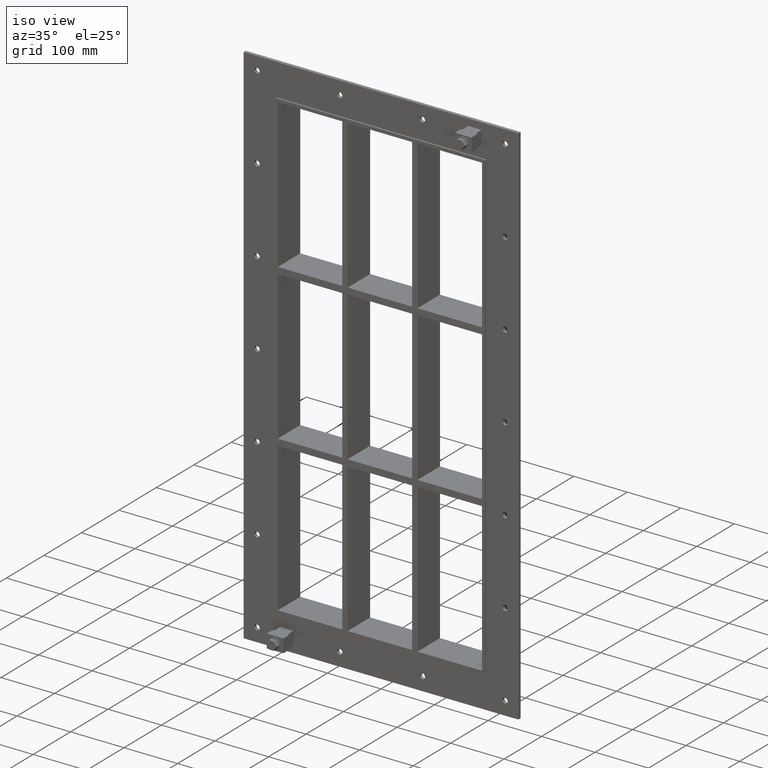
[diagram: clean part render]
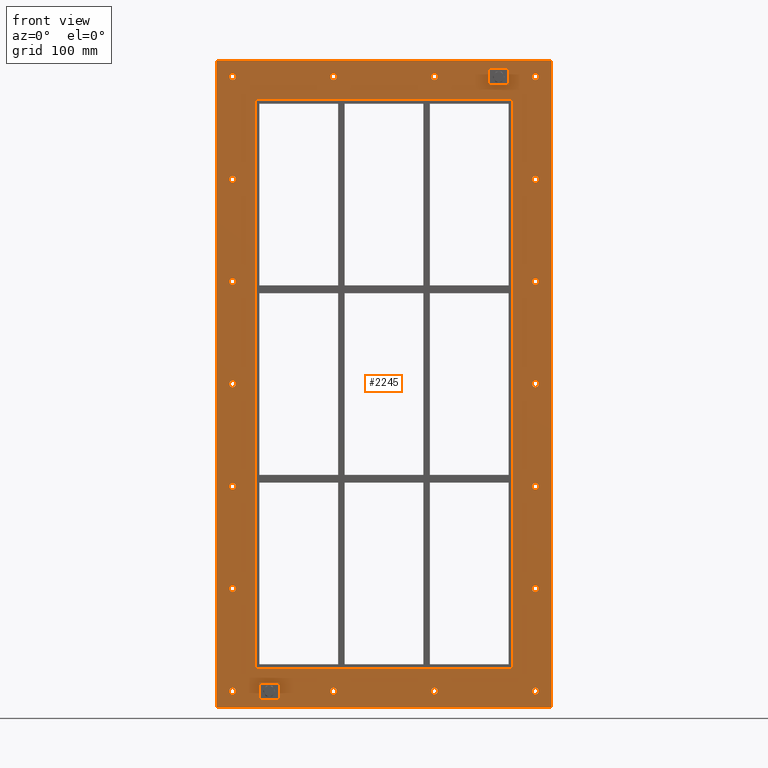
[diagram: tour spotlight — one face highlighted and labeled with its STEP entity id]
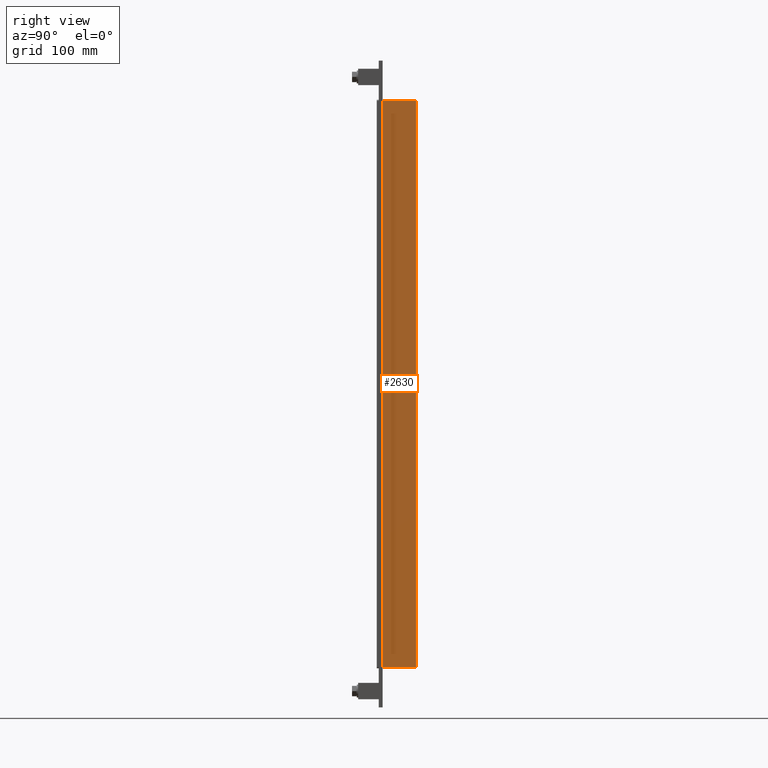
[diagram: tour spotlight — one face highlighted and labeled with its STEP entity id]
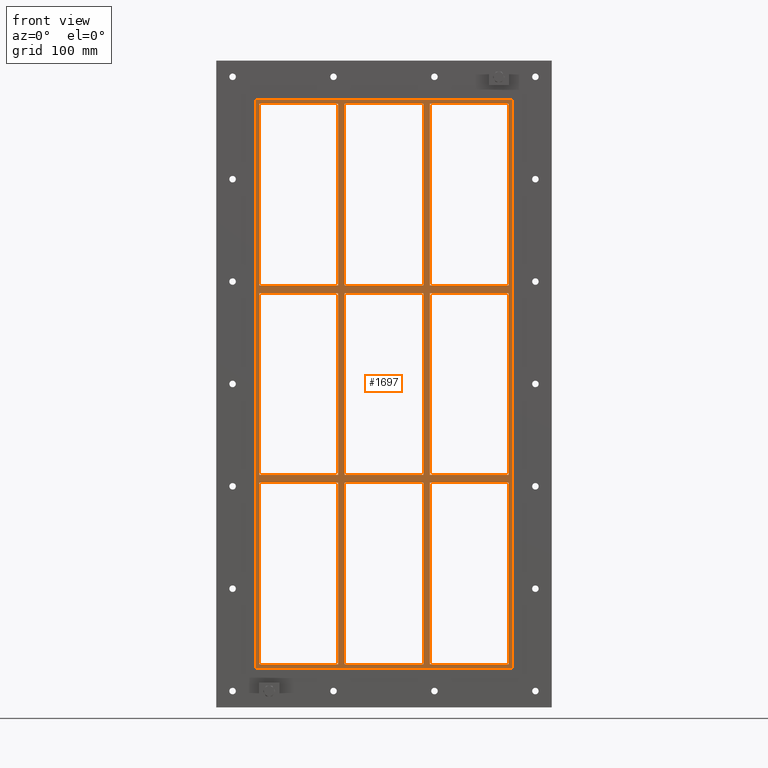
[diagram: tour spotlight — one face highlighted and labeled with its STEP entity id]
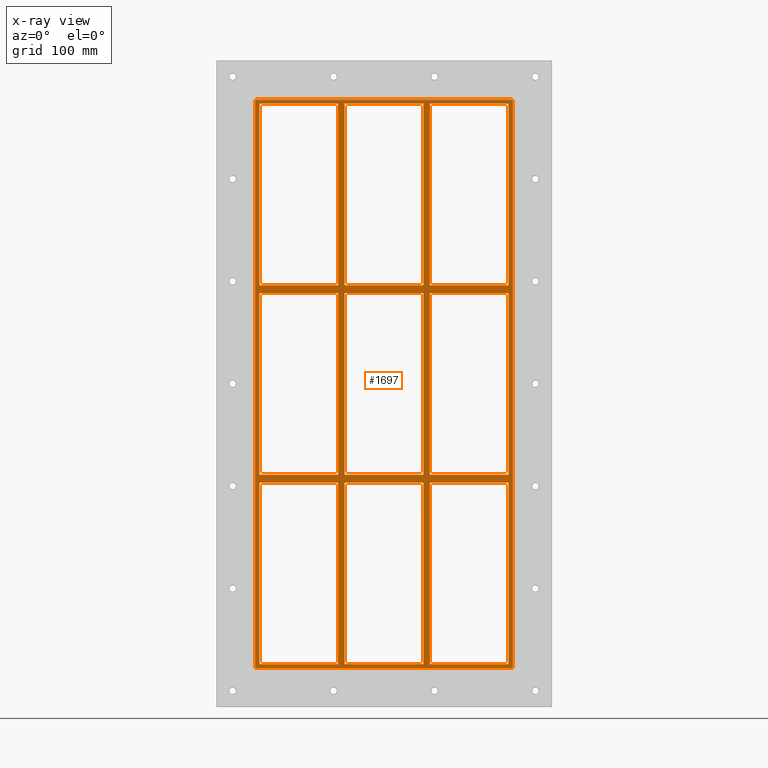
[diagram: x-ray of the same camera — body ghosted, this tour face saturated]
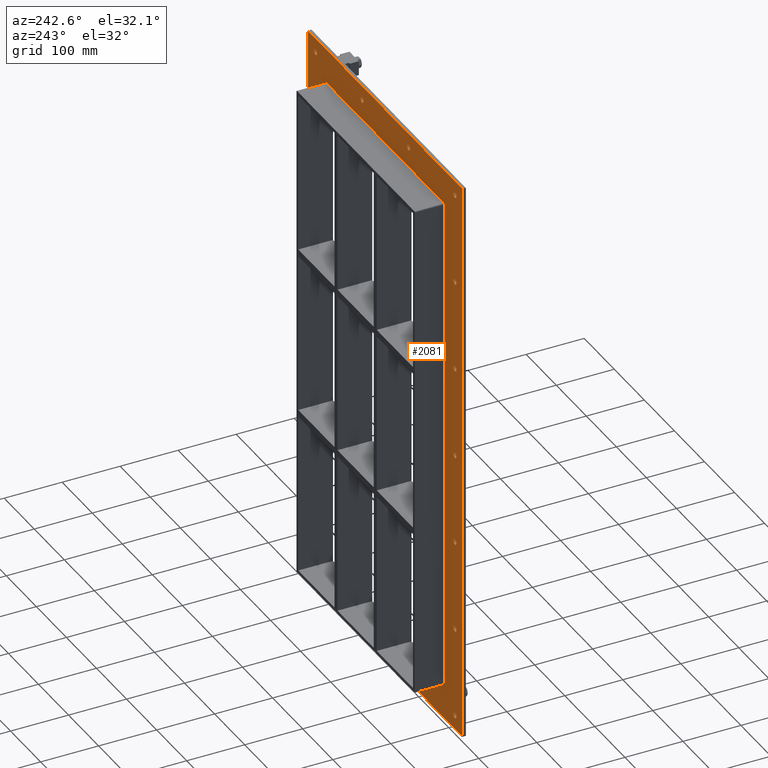
[diagram: tour spotlight — one face highlighted and labeled with its STEP entity id]
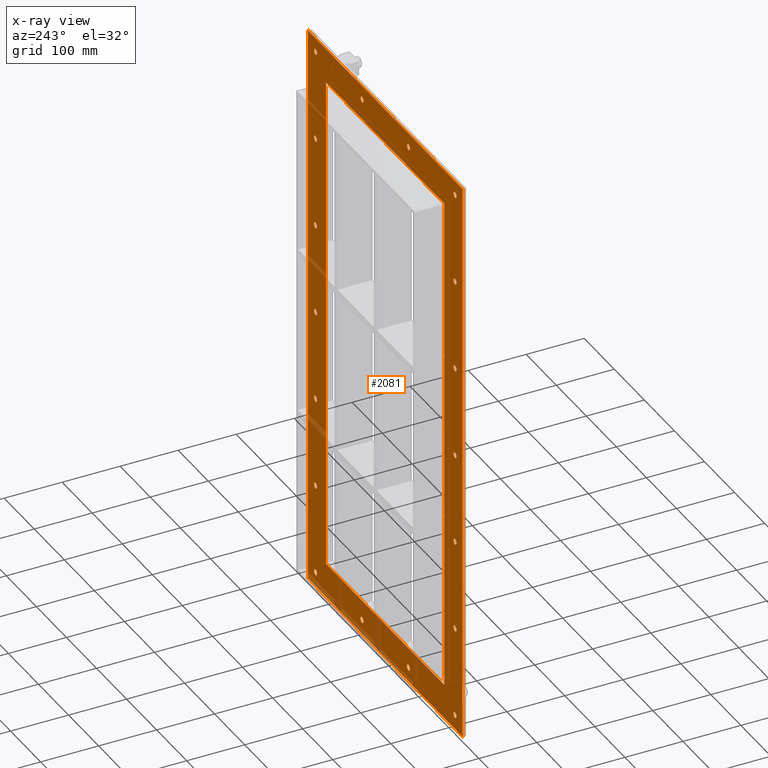
[diagram: x-ray of the same camera — body ghosted, this tour face saturated]
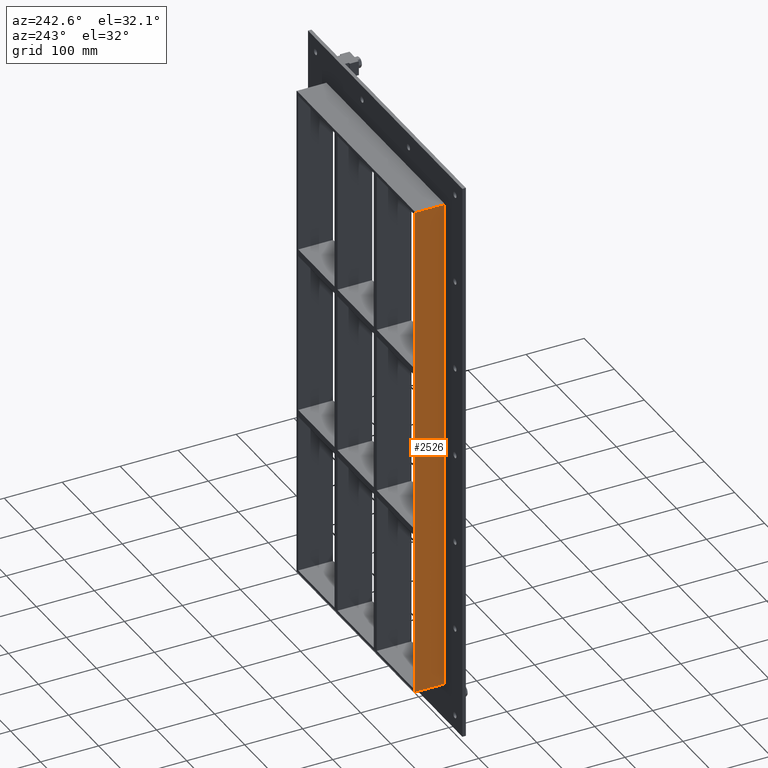
[diagram: tour spotlight — one face highlighted and labeled with its STEP entity id]
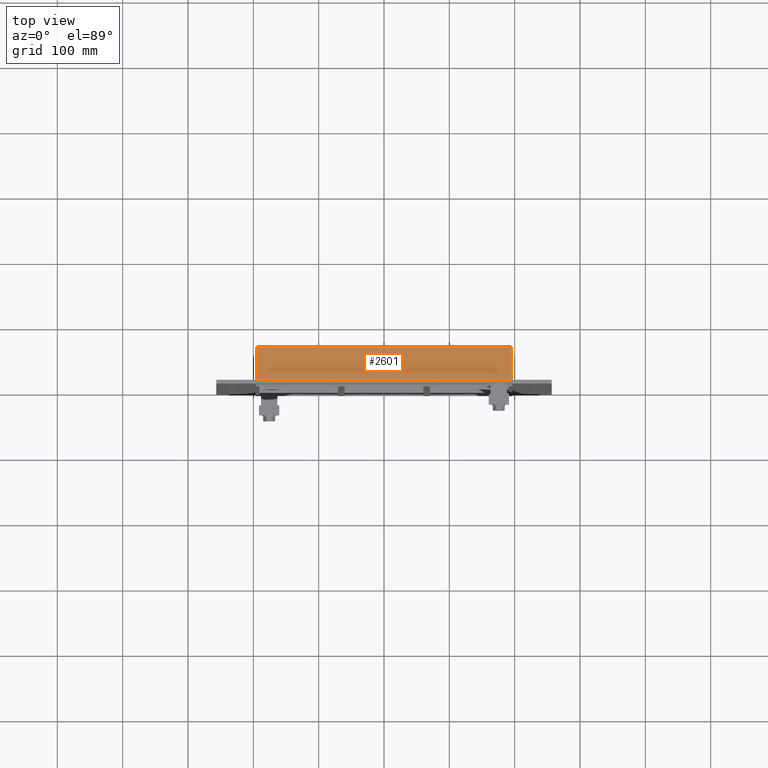
[diagram: tour spotlight — one face highlighted and labeled with its STEP entity id]
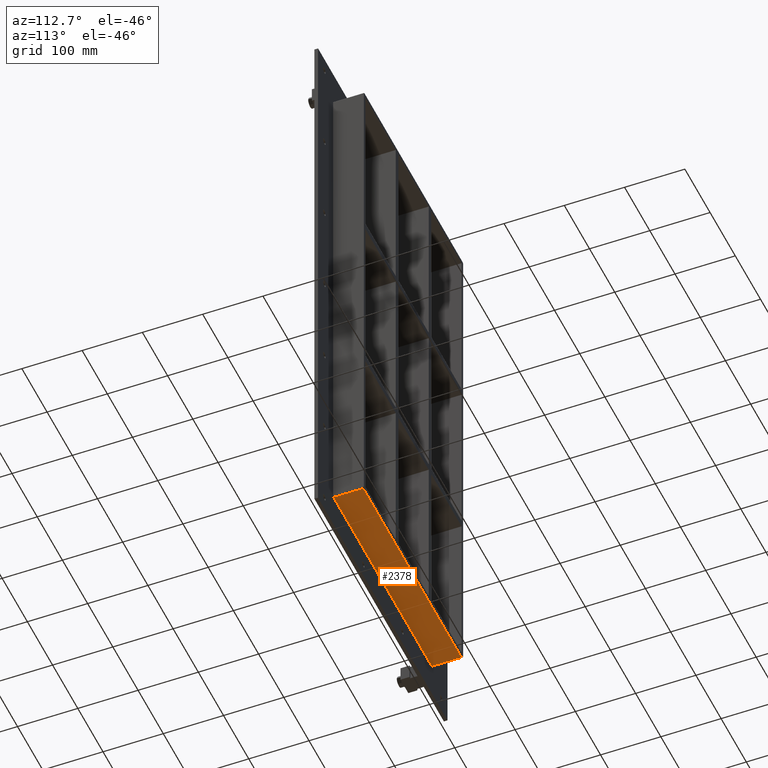
[diagram: tour spotlight — one face highlighted and labeled with its STEP entity id]
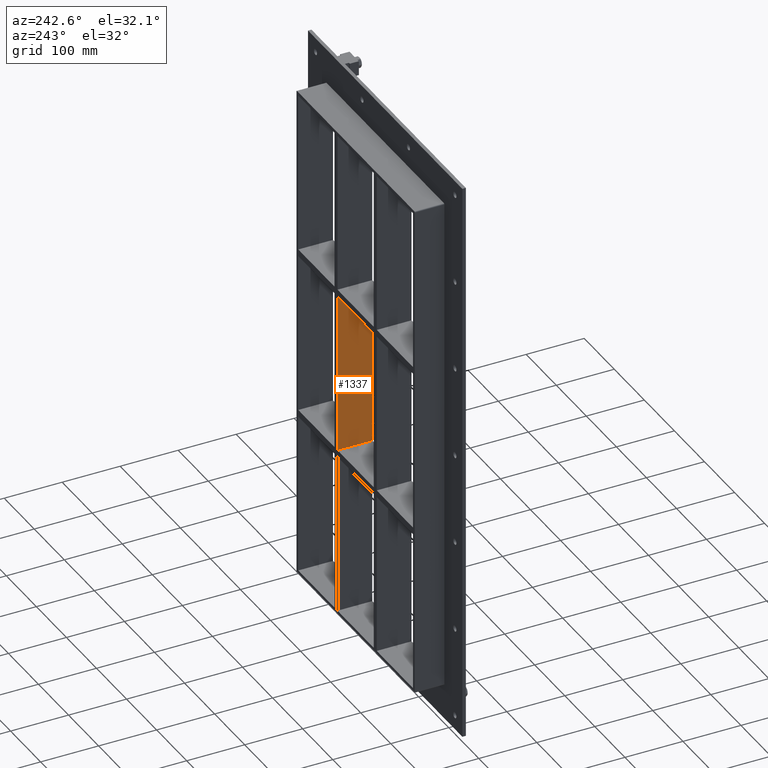
[diagram: tour spotlight — one face highlighted and labeled with its STEP entity id]
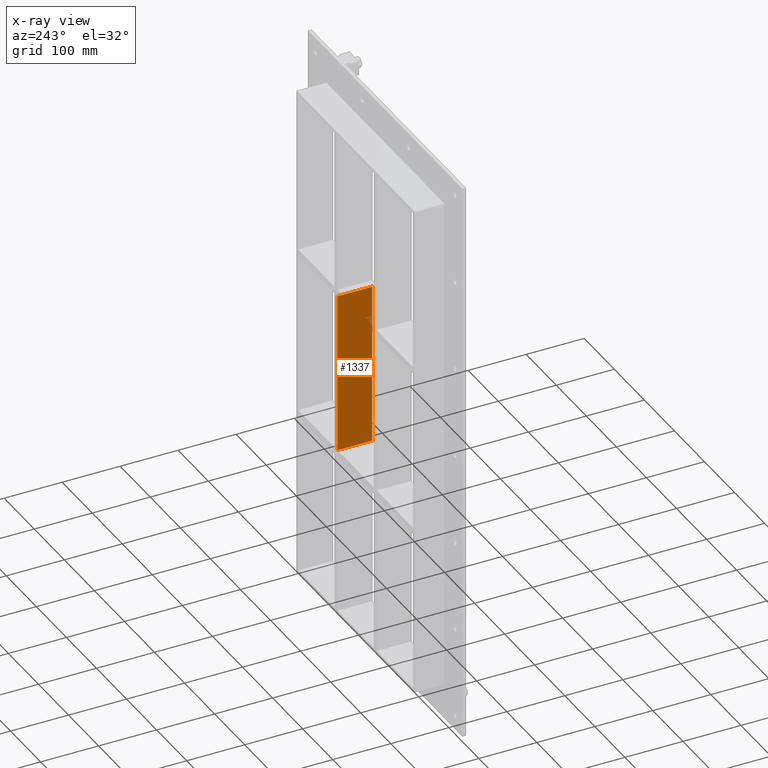
[diagram: x-ray of the same camera — body ghosted, this tour face saturated]
A machine part: a face-by-face anatomy tour. The part has 157 B-rep faces; the first image is the clean iso view, then the 8 largest visible faces are spotlighted one at a time (largest first), each with its STEP entity span.

Face 1 — front view, entity #2245. In plain terms, the highlighted planar face has unit normal (0, 1, 0).
Definition (entity closure, byte-faithful):
#84=CARTESIAN_POINT('',(-226.75000000000014,0.0,-470.0));
#85=VERTEX_POINT('',#84);
#86=CARTESIAN_POINT('',(-231.75000000000014,0.0,-470.0));
#87=DIRECTION('',(0.0,1.0,0.0));
#88=DIRECTION('',(1.0,0.0,0.0));
#89=AXIS2_PLACEMENT_3D('',#86,#87,#88);
#90=CIRCLE('',#89,5.0);
#91=EDGE_CURVE('',#85,#85,#90,.T.);
#112=CARTESIAN_POINT('',(236.74999999999986,0.0,-313.29999999999995));
#113=VERTEX_POINT('',#112);
#114=CARTESIAN_POINT('',(231.74999999999986,0.0,-313.29999999999995));
#115=DIRECTION('',(0.0,1.0,0.0));
#116=DIRECTION('',(1.0,0.0,0.0));
#117=AXIS2_PLACEMENT_3D('',#114,#115,#116);
#118=CIRCLE('',#117,5.0);
#119=EDGE_CURVE('',#113,#113,#118,.T.);
#140=CARTESIAN_POINT('',(-226.75000000000014,0.0,-313.29999999999995));
#141=VERTEX_POINT('',#140);
#142=CARTESIAN_POINT('',(-231.75000000000014,0.0,-313.29999999999995));
#143=DIRECTION('',(0.0,1.0,0.0));
#144=DIRECTION('',(1.0,0.0,0.0));
#145=AXIS2_PLACEMENT_3D('',#142,#143,#144);
#146=CIRCLE('',#145,5.0);
#147=EDGE_CURVE('',#141,#141,#146,.T.);
#168=CARTESIAN_POINT('',(236.74999999999986,0.0,-156.60000000000002));
#169=VERTEX_POINT('',#168);
#170=CARTESIAN_POINT('',(231.74999999999986,0.0,-156.60000000000002));
#171=DIRECTION('',(0.0,1.0,0.0));
#172=DIRECTION('',(1.0,0.0,0.0));
#173=AXIS2_PLACEMENT_3D('',#170,#171,#172);
#174=CIRCLE('',#173,5.0);
#175=EDGE_CURVE('',#169,#169,#174,.T.);
#196=CARTESIAN_POINT('',(-226.75000000000014,0.0,-156.60000000000002));
#197=VERTEX_POINT('',#196);
#198=CARTESIAN_POINT('',(-231.75000000000014,0.0,-156.60000000000002));
#199=DIRECTION('',(0.0,1.0,0.0));
#200=DIRECTION('',(1.0,0.0,0.0));
#201=AXIS2_PLACEMENT_3D('',#198,#199,#200);
#202=CIRCLE('',#201,5.0);
#203=EDGE_CURVE('',#197,#197,#202,.T.);
#224=CARTESIAN_POINT('',(236.74999999999986,0.0,0.099999999999998));
#225=VERTEX_POINT('',#224);
#226=CARTESIAN_POINT('',(231.74999999999986,0.0,0.099999999999998));
#227=DIRECTION('',(0.0,1.0,0.0));
#228=DIRECTION('',(1.0,0.0,0.0));
#229=AXIS2_PLACEMENT_3D('',#226,#227,#228);
#230=CIRCLE('',#229,5.0);
#231=EDGE_CURVE('',#225,#225,#230,.T.);
#252=CARTESIAN_POINT('',(-226.75000000000014,0.0,0.099999999999998));
#253=VERTEX_POINT('',#252);
#254=CARTESIAN_POINT('',(-231.75000000000014,0.0,0.099999999999998));
#255=DIRECTION('',(0.0,1.0,0.0));
#256=DIRECTION('',(1.0,0.0,0.0));
#257=AXIS2_PLACEMENT_3D('',#254,#255,#256);
#258=CIRCLE('',#257,5.0);
#259=EDGE_CURVE('',#253,#253,#258,.T.);
#280=CARTESIAN_POINT('',(236.74999999999986,0.0,156.79999999999995));
#281=VERTEX_POINT('',#280);
#282=CARTESIAN_POINT('',(231.74999999999986,0.0,156.79999999999995));
#283=DIRECTION('',(0.0,1.0,0.0));
#284=DIRECTION('',(1.0,0.0,0.0));
#285=AXIS2_PLACEMENT_3D('',#282,#283,#284);
#286=CIRCLE('',#285,5.0);
#287=EDGE_CURVE('',#281,#281,#286,.T.);
#308=CARTESIAN_POINT('',(-226.75000000000014,0.0,156.79999999999995));
#309=VERTEX_POINT('',#308);
#310=CARTESIAN_POINT('',(-231.75000000000014,0.0,156.79999999999995));
#311=DIRECTION('',(0.0,1.0,0.0));
#312=DIRECTION('',(1.0,0.0,0.0));
#313=AXIS2_PLACEMENT_3D('',#310,#311,#312);
#314=CIRCLE('',#313,5.0);
#315=EDGE_CURVE('',#309,#309,#314,.T.);
#336=CARTESIAN_POINT('',(236.74999999999986,0.0,313.49999999999994));
#337=VERTEX_POINT('',#336);
#338=CARTESIAN_POINT('',(231.74999999999986,0.0,313.49999999999994));
#339=DIRECTION('',(0.0,1.0,0.0));
#340=DIRECTION('',(1.0,0.0,0.0));
#341=AXIS2_PLACEMENT_3D('',#338,#339,#340);
#342=CIRCLE('',#341,5.0);
#343=EDGE_CURVE('',#337,#337,#342,.T.);
#364=CARTESIAN_POINT('',(-226.75000000000014,0.0,313.49999999999994));
#365=VERTEX_POINT('',#364);
#366=CARTESIAN_POINT('',(-231.75000000000014,0.0,313.49999999999994));
#367=DIRECTION('',(0.0,1.0,0.0));
#368=DIRECTION('',(1.0,0.0,0.0));
#369=AXIS2_PLACEMENT_3D('',#366,#367,#368);
#370=CIRCLE('',#369,5.0);
#371=EDGE_CURVE('',#365,#365,#370,.T.);
#392=CARTESIAN_POINT('',(-72.250000000000156,0.0,470.19999999999993));
#393=VERTEX_POINT('',#392);
#394=CARTESIAN_POINT('',(-77.250000000000156,0.0,470.19999999999993));
#395=DIRECTION('',(0.0,1.0,0.0));
#396=DIRECTION('',(1.0,0.0,0.0));
#397=AXIS2_PLACEMENT_3D('',#394,#395,#396);
#398=CIRCLE('',#397,5.0);
#399=EDGE_CURVE('',#393,#393,#398,.T.);
#420=CARTESIAN_POINT('',(-72.250000000000156,0.0,-470.0));
#421=VERTEX_POINT('',#420);
#422=CARTESIAN_POINT('',(-77.250000000000156,0.0,-470.0));
#423=DIRECTION('',(0.0,1.0,0.0));
#424=DIRECTION('',(1.0,0.0,0.0));
#425=AXIS2_PLACEMENT_3D('',#422,#423,#424);
#426=CIRCLE('',#425,5.0);
#427=EDGE_CURVE('',#421,#421,#426,.T.);
#448=CARTESIAN_POINT('',(82.249999999999858,0.0,470.19999999999993));
#449=VERTEX_POINT('',#448);
#450=CARTESIAN_POINT('',(77.249999999999858,0.0,470.19999999999993));
#451=DIRECTION('',(0.0,1.0,0.0));
#452=DIRECTION('',(1.0,0.0,0.0));
#453=AXIS2_PLACEMENT_3D('',#450,#451,#452);
#454=CIRCLE('',#453,5.0);
#455=EDGE_CURVE('',#449,#449,#454,.T.);
#476=CARTESIAN_POINT('',(82.249999999999858,0.0,-470.0));
#477=VERTEX_POINT('',#476);
#478=CARTESIAN_POINT('',(77.249999999999858,0.0,-470.0));
#479=DIRECTION('',(0.0,1.0,0.0));
#480=DIRECTION('',(1.0,0.0,0.0));
#481=AXIS2_PLACEMENT_3D('',#478,#479,#480);
#482=CIRCLE('',#481,5.0);
#483=EDGE_CURVE('',#477,#477,#482,.T.);
#504=CARTESIAN_POINT('',(236.74999999999986,0.0,-470.0));
#505=VERTEX_POINT('',#504);
#506=CARTESIAN_POINT('',(231.74999999999986,0.0,-470.0));
#507=DIRECTION('',(0.0,1.0,0.0));
#508=DIRECTION('',(1.0,0.0,0.0));
#509=AXIS2_PLACEMENT_3D('',#506,#507,#508);
#510=CIRCLE('',#509,5.0);
#511=EDGE_CURVE('',#505,#505,#510,.T.);
#532=CARTESIAN_POINT('',(-226.75000000000014,0.0,470.19999999999993));
#533=VERTEX_POINT('',#532);
#534=CARTESIAN_POINT('',(-231.75000000000014,0.0,470.19999999999993));
#535=DIRECTION('',(0.0,1.0,0.0));
#536=DIRECTION('',(1.0,0.0,0.0));
#537=AXIS2_PLACEMENT_3D('',#534,#535,#536);
#538=CIRCLE('',#537,5.0);
#539=EDGE_CURVE('',#533,#533,#538,.T.);
#560=CARTESIAN_POINT('',(236.74999999999986,0.0,470.19999999999993));
#561=VERTEX_POINT('',#560);
#562=CARTESIAN_POINT('',(231.74999999999986,0.0,470.19999999999993));
#563=DIRECTION('',(0.0,1.0,0.0));
#564=DIRECTION('',(1.0,0.0,0.0));
#565=AXIS2_PLACEMENT_3D('',#562,#563,#564);
#566=CIRCLE('',#565,5.0);
#567=EDGE_CURVE('',#561,#561,#566,.T.);
#2082=CARTESIAN_POINT('',(1.134222E-014,0.0,3.402666E-014));
#2083=DIRECTION('',(0.0,1.0,0.0));
#2084=DIRECTION('',(0.0,0.0,1.0));
#2085=AXIS2_PLACEMENT_3D('',#2082,#2083,#2084);
#2086=PLANE('',#2085);
#2087=CARTESIAN_POINT('',(-256.75,0.0,495.00000000000006));
#2088=VERTEX_POINT('',#2087);
#2089=CARTESIAN_POINT('',(256.75000000000006,0.0,495.00000000000006));
#2090=VERTEX_POINT('',#2089);
#2091=CARTESIAN_POINT('',(-256.75,0.0,495.00000000000006));
#2092=DIRECTION('',(1.0,0.0,0.0));
#2093=VECTOR('',#2092,513.50000000000011);
#2094=LINE('',#2091,#2093);
#2095=EDGE_CURVE('',#2088,#2090,#2094,.T.);
#2096=ORIENTED_EDGE('',*,*,#2095,.F.);
#2097=CARTESIAN_POINT('',(-256.75,0.0,-495.0));
#2098=VERTEX_POINT('',#2097);
#2099=CARTESIAN_POINT('',(-256.75,0.0,-495.0));
#2100=DIRECTION('',(0.0,0.0,1.0));
#2101=VECTOR('',#2100,990.0);
#2102=LINE('',#2099,#2101);
#2103=EDGE_CURVE('',#2098,#2088,#2102,.T.);
#2104=ORIENTED_EDGE('',*,*,#2103,.F.);
#2105=CARTESIAN_POINT('',(256.75000000000006,0.0,-495.0));
#2106=VERTEX_POINT('',#2105);
#2107=CARTESIAN_POINT('',(256.75000000000006,0.0,-495.0));
#2108=DIRECTION('',(-1.0,0.0,0.0));
#2109=VECTOR('',#2108,513.50000000000011);
#2110=LINE('',#2107,#2109);
#2111=EDGE_CURVE('',#2106,#2098,#2110,.T.);
#2112=ORIENTED_EDGE('',*,*,#2111,.F.);
#2113=CARTESIAN_POINT('',(256.75000000000006,0.0,495.00000000000006));
#2114=DIRECTION('',(0.0,0.0,-1.0));
#2115=VECTOR('',#2114,990.0);
#2116=LINE('',#2113,#2115);
#2117=EDGE_CURVE('',#2090,#2106,#2116,.T.);
#2118=ORIENTED_EDGE('',*,*,#2117,.F.);
#2119=EDGE_LOOP('',(#2096,#2104,#2112,#2118));
#2120=FACE_OUTER_BOUND('',#2119,.T.);
#2121=ORIENTED_EDGE('',*,*,#91,.T.);
#2122=EDGE_LOOP('',(#2121));
#2123=FACE_BOUND('',#2122,.T.);
#2124=ORIENTED_EDGE('',*,*,#119,.T.);
#2125=EDGE_LOOP('',(#2124));
#2126=FACE_BOUND('',#2125,.T.);
#2127=ORIENTED_EDGE('',*,*,#147,.T.);
#2128=EDGE_LOOP('',(#2127));
#2129=FACE_BOUND('',#2128,.T.);
#2130=ORIENTED_EDGE('',*,*,#175,.T.);
#2131=EDGE_LOOP('',(#2130));
#2132=FACE_BOUND('',#2131,.T.);
#2133=ORIENTED_EDGE('',*,*,#203,.T.);
#2134=EDGE_LOOP('',(#2133));
#2135=FACE_BOUND('',#2134,.T.);
#2136=ORIENTED_EDGE('',*,*,#231,.T.);
#2137=EDGE_LOOP('',(#2136));
#2138=FACE_BOUND('',#2137,.T.);
#2139=ORIENTED_EDGE('',*,*,#259,.T.);
#2140=EDGE_LOOP('',(#2139));
#2141=FACE_BOUND('',#2140,.T.);
#2142=ORIENTED_EDGE('',*,*,#287,.T.);
#2143=EDGE_LOOP('',(#2142));
#2144=FACE_BOUND('',#2143,.T.);
#2145=ORIENTED_EDGE('',*,*,#315,.T.);
#2146=EDGE_LOOP('',(#2145));
#2147=FACE_BOUND('',#2146,.T.);
#2148=ORIENTED_EDGE('',*,*,#343,.T.);
#2149=EDGE_LOOP('',(#2148));
#2150=FACE_BOUND('',#2149,.T.);
#2151=ORIENTED_EDGE('',*,*,#371,.T.);
#2152=EDGE_LOOP('',(#2151));
#2153=FACE_BOUND('',#2152,.T.);
#2154=ORIENTED_EDGE('',*,*,#399,.T.);
#2155=EDGE_LOOP('',(#2154));
#2156=FACE_BOUND('',#2155,.T.);
#2157=ORIENTED_EDGE('',*,*,#427,.T.);
#2158=EDGE_LOOP('',(#2157));
#2159=FACE_BOUND('',#2158,.T.);
#2160=ORIENTED_EDGE('',*,*,#455,.T.);
#2161=EDGE_LOOP('',(#2160));
#2162=FACE_BOUND('',#2161,.T.);
#2163=ORIENTED_EDGE('',*,*,#483,.T.);
#2164=EDGE_LOOP('',(#2163));
#2165=FACE_BOUND('',#2164,.T.);
#2166=ORIENTED_EDGE('',*,*,#511,.T.);
#2167=EDGE_LOOP('',(#2166));
#2168=FACE_BOUND('',#2167,.T.);
#2169=ORIENTED_EDGE('',*,*,#539,.T.);
#2170=EDGE_LOOP('',(#2169));
#2171=FACE_BOUND('',#2170,.T.);
#2172=ORIENTED_EDGE('',*,*,#567,.T.);
#2173=EDGE_LOOP('',(#2172));
#2174=FACE_BOUND('',#2173,.T.);
#2175=CARTESIAN_POINT('',(-194.75,0.0,435.0));
#2176=VERTEX_POINT('',#2175);
#2177=CARTESIAN_POINT('',(-196.75000000000006,0.0,433.0));
#2178=VERTEX_POINT('',#2177);
#2179=CARTESIAN_POINT('',(-194.75,0.0,433.0));
#2180=DIRECTION('',(0.0,-1.0,0.0));
#2181=DIRECTION('',(-0.707106781186548,0.0,0.707106781186548));
#2182=AXIS2_PLACEMENT_3D('',#2179,#2180,#2181);
#2183=CIRCLE('',#2182,2.0);
#2184=EDGE_CURVE('',#2176,#2178,#2183,.T.);
#2185=ORIENTED_EDGE('',*,*,#2184,.F.);
#2186=CARTESIAN_POINT('',(194.75,0.0,435.0));
#2187=VERTEX_POINT('',#2186);
#2188=CARTESIAN_POINT('',(194.75000000000003,0.0,435.0));
#2189=DIRECTION('',(-1.0,0.0,0.0));
#2190=VECTOR('',#2189,389.50000000000006);
#2191=LINE('',#2188,#2190);
#2192=EDGE_CURVE('',#2187,#2176,#2191,.T.);
#2193=ORIENTED_EDGE('',*,*,#2192,.F.);
#2194=CARTESIAN_POINT('',(196.75000000000006,0.0,433.0));
#2195=VERTEX_POINT('',#2194);
#2196=CARTESIAN_POINT('',(194.75,0.0,433.0));
#2197=DIRECTION('',(0.0,-1.0,0.0));
#2198=DIRECTION('',(0.707106781186548,0.0,0.707106781186548));
#2199=AXIS2_PLACEMENT_3D('',#2196,#2197,#2198);
#2200=CIRCLE('',#2199,2.0);
#2201=EDGE_CURVE('',#2195,#2187,#2200,.T.);
#2202=ORIENTED_EDGE('',*,*,#2201,.F.);
#2203=CARTESIAN_POINT('',(196.75000000000006,0.0,-433.00000000000011));
#2204=VERTEX_POINT('',#2203);
#2205=CARTESIAN_POINT('',(196.75000000000006,0.0,-433.00000000000011));
#2206=DIRECTION('',(0.0,0.0,1.0));
#2207=VECTOR('',#2206,866.00000000000011);
#2208=LINE('',#2205,#2207);
#2209=EDGE_CURVE('',#2204,#2195,#2208,.T.);
#2210=ORIENTED_EDGE('',*,*,#2209,.F.);
#2211=CARTESIAN_POINT('',(194.75,0.0,-435.00000000000011));
#2212=VERTEX_POINT('',#2211);
#2213=CARTESIAN_POINT('',(194.75,0.0,-433.00000000000011));
#2214=DIRECTION('',(0.0,-1.0,0.0));
#2215=DIRECTION('',(0.707106781186548,0.0,-0.707106781186548));
#2216=AXIS2_PLACEMENT_3D('',#2213,#2214,#2215);
#2217=CIRCLE('',#2216,2.0);
#2218=EDGE_CURVE('',#2212,#2204,#2217,.T.);
#2219=ORIENTED_EDGE('',*,*,#2218,.F.);
#2220=CARTESIAN_POINT('',(-194.75,0.0,-435.00000000000011));
#2221=VERTEX_POINT('',#2220);
#2222=CARTESIAN_POINT('',(-194.75000000000003,0.0,-435.00000000000011));
#2223=DIRECTION('',(1.0,0.0,0.0));
#2224=VECTOR('',#2223,389.50000000000006);
#2225=LINE('',#2222,#2224);
#2226=EDGE_CURVE('',#2221,#2212,#2225,.T.);
#2227=ORIENTED_EDGE('',*,*,#2226,.F.);
#2228=CARTESIAN_POINT('',(-196.75000000000006,0.0,-433.00000000000011));
#2229=VERTEX_POINT('',#2228);
#2230=CARTESIAN_POINT('',(-194.75,0.0,-433.00000000000011));
#2231=DIRECTION('',(0.0,-1.0,0.0));
#2232=DIRECTION('',(-0.707106781186548,0.0,-0.707106781186548));
#2233=AXIS2_PLACEMENT_3D('',#2230,#2231,#2232);
#2234=CIRCLE('',#2233,2.0);
#2235=EDGE_CURVE('',#2229,#2221,#2234,.T.);
#2236=ORIENTED_EDGE('',*,*,#2235,.F.);
#2237=CARTESIAN_POINT('',(-196.75000000000006,0.0,433.00000000000006));
#2238=DIRECTION('',(0.0,0.0,-1.0));
#2239=VECTOR('',#2238,866.00000000000023);
#2240=LINE('',#2237,#2239);
#2241=EDGE_CURVE('',#2178,#2229,#2240,.T.);
#2242=ORIENTED_EDGE('',*,*,#2241,.F.);
#2243=EDGE_LOOP('',(#2185,#2193,#2202,#2210,#2219,#2227,#2236,#2242));
#2244=FACE_BOUND('',#2243,.T.);
#2245=ADVANCED_FACE('',(#2120,#2123,#2126,#2129,#2132,#2135,#2138,#2141,#2144,#2147,#2150,#2153,#2156,#2159,#2162,#2165,#2168,#2171,#2174,#2244),#2086,.F.);

Face 2 — right view, entity #2630. In plain terms, the highlighted planar face has unit normal (1, 0, 0).
Definition (entity closure, byte-faithful):
#1067=CARTESIAN_POINT('',(196.75000000000006,57.0,-433.00000000000011));
#1068=VERTEX_POINT('',#1067);
#1100=CARTESIAN_POINT('',(196.75000000000006,57.0,433.0));
#1101=VERTEX_POINT('',#1100);
#1109=CARTESIAN_POINT('',(196.75000000000006,57.0,433.0));
#1110=DIRECTION('',(0.0,0.0,-1.0));
#1111=VECTOR('',#1110,866.00000000000011);
#1112=LINE('',#1109,#1111);
#1113=EDGE_CURVE('',#1101,#1068,#1112,.T.);
#2047=CARTESIAN_POINT('',(196.75000000000006,6.000000000000001,-433.00000000000011));
#2048=VERTEX_POINT('',#2047);
#2056=CARTESIAN_POINT('',(196.75000000000006,6.000000000000001,433.0));
#2057=VERTEX_POINT('',#2056);
#2058=CARTESIAN_POINT('',(196.75000000000006,6.000000000000001,433.0));
#2059=DIRECTION('',(0.0,0.0,-1.0));
#2060=VECTOR('',#2059,866.00000000000011);
#2061=LINE('',#2058,#2060);
#2062=EDGE_CURVE('',#2057,#2048,#2061,.T.);
#2410=CARTESIAN_POINT('',(196.75000000000006,57.0,-433.00000000000011));
#2411=DIRECTION('',(0.0,-1.0,0.0));
#2412=VECTOR('',#2411,51.0);
#2413=LINE('',#2410,#2412);
#2414=EDGE_CURVE('',#1068,#2048,#2413,.T.);
#2608=CARTESIAN_POINT('',(196.75000000000006,6.000000000000001,433.0));
#2609=DIRECTION('',(0.0,1.0,0.0));
#2610=VECTOR('',#2609,51.0);
#2611=LINE('',#2608,#2610);
#2612=EDGE_CURVE('',#2057,#1101,#2611,.T.);
#2619=CARTESIAN_POINT('',(196.75000000000006,0.0,435.0));
#2620=DIRECTION('',(1.0,0.0,0.0));
#2621=DIRECTION('',(0.0,0.0,-1.0));
#2622=AXIS2_PLACEMENT_3D('',#2619,#2620,#2621);
#2623=PLANE('',#2622);
#2624=ORIENTED_EDGE('',*,*,#2062,.T.);
#2625=ORIENTED_EDGE('',*,*,#2414,.F.);
#2626=ORIENTED_EDGE('',*,*,#1113,.F.);
#2627=ORIENTED_EDGE('',*,*,#2612,.F.);
#2628=EDGE_LOOP('',(#2624,#2625,#2626,#2627));
#2629=FACE_OUTER_BOUND('',#2628,.T.);
#2630=ADVANCED_FACE('',(#2629),#2623,.T.);

Face 3 — front view, entity #1697. An x-ray twin of the same camera follows (body ghosted, this face saturated) — the face is partly hidden behind the body. In plain terms, the highlighted planar face has unit normal (0, 1, 0).
Definition (entity closure, byte-faithful):
#577=CARTESIAN_POINT('',(-70.250000000000369,-3.0,138.99999999998863));
#578=VERTEX_POINT('',#577);
#587=CARTESIAN_POINT('',(-190.74999999999872,-3.0,138.9999999999884));
#588=VERTEX_POINT('',#587);
#589=CARTESIAN_POINT('',(-70.250000000000398,-3.0,138.9999999999886));
#590=DIRECTION('',(-1.0,0.0,0.0));
#591=VECTOR('',#590,120.49999999999835);
#592=LINE('',#589,#591);
#593=EDGE_CURVE('',#578,#588,#592,.T.);
#619=CARTESIAN_POINT('',(70.250000000003638,-3.0,138.99999999998886));
#620=VERTEX_POINT('',#619);
#635=CARTESIAN_POINT('',(190.75000000000728,-3.0,138.99999999998903));
#636=VERTEX_POINT('',#635);
#643=CARTESIAN_POINT('',(190.75000000000728,-3.0,138.99999999998903));
#644=DIRECTION('',(-1.0,0.0,0.0));
#645=VECTOR('',#644,120.50000000000364);
#646=LINE('',#643,#645);
#647=EDGE_CURVE('',#636,#620,#646,.T.);
#657=CARTESIAN_POINT('',(60.249999999999631,-3.0,138.99999999998883));
#658=VERTEX_POINT('',#657);
#667=CARTESIAN_POINT('',(-60.249999999996362,-3.0,138.99999999998863));
#668=VERTEX_POINT('',#667);
#669=CARTESIAN_POINT('',(60.249999999999631,-3.0,138.9999999999888));
#670=DIRECTION('',(-1.0,0.0,0.0));
#671=VECTOR('',#670,120.49999999999599);
#672=LINE('',#669,#671);
#673=EDGE_CURVE('',#658,#668,#672,.T.);
#699=CARTESIAN_POINT('',(-70.250000000000369,-3.0,151.00000000000023));
#700=VERTEX_POINT('',#699);
#715=CARTESIAN_POINT('',(-190.74999999999872,-3.0,151.00000000000023));
#716=VERTEX_POINT('',#715);
#723=CARTESIAN_POINT('',(-190.74999999999872,-3.0,151.00000000000023));
#724=DIRECTION('',(1.0,0.0,0.0));
#725=VECTOR('',#724,120.49999999999834);
#726=LINE('',#723,#725);
#727=EDGE_CURVE('',#716,#700,#726,.T.);
#737=CARTESIAN_POINT('',(70.250000000003638,-3.0,151.00000000000023));
#738=VERTEX_POINT('',#737);
#747=CARTESIAN_POINT('',(190.7499999999996,-3.0,151.00000000000023));
#748=VERTEX_POINT('',#747);
#749=CARTESIAN_POINT('',(70.250000000003666,-3.0,151.00000000000023));
#750=DIRECTION('',(1.0,0.0,0.0));
#751=VECTOR('',#750,120.49999999999596);
#752=LINE('',#749,#751);
#753=EDGE_CURVE('',#738,#748,#752,.T.);
#779=CARTESIAN_POINT('',(60.249999999999631,-3.0,151.00000000000023));
#780=VERTEX_POINT('',#779);
#795=CARTESIAN_POINT('',(-60.249999999996362,-3.0,151.00000000000023));
#796=VERTEX_POINT('',#795);
#803=CARTESIAN_POINT('',(-60.249999999996362,-3.0,151.00000000000023));
#804=DIRECTION('',(1.0,0.0,0.0));
#805=VECTOR('',#804,120.49999999999599);
#806=LINE('',#803,#805);
#807=EDGE_CURVE('',#796,#780,#806,.T.);
#826=CARTESIAN_POINT('',(-190.75000000000003,-3.0,429.00000000000006));
#827=VERTEX_POINT('',#826);
#834=CARTESIAN_POINT('',(-190.75000000000003,-3.0,151.00000000000017));
#835=DIRECTION('',(0.0,0.0,1.0));
#836=VECTOR('',#835,277.99999999999989);
#837=LINE('',#834,#836);
#838=EDGE_CURVE('',#716,#827,#837,.T.);
#857=CARTESIAN_POINT('',(190.7499999999996,-3.0,-138.99999999999977));
#858=VERTEX_POINT('',#857);
#865=CARTESIAN_POINT('',(190.75000000000003,-3.0,138.99999999998906));
#866=DIRECTION('',(0.0,0.0,-1.0));
#867=VECTOR('',#866,277.99999999998886);
#868=LINE('',#865,#867);
#869=EDGE_CURVE('',#636,#858,#868,.T.);
#880=CARTESIAN_POINT('',(190.75000000000003,-3.0,429.00000000000006));
#881=VERTEX_POINT('',#880);
#882=CARTESIAN_POINT('',(190.75000000000003,-3.0,429.00000000000006));
#883=DIRECTION('',(0.0,0.0,-1.0));
#884=VECTOR('',#883,277.99999999999983);
#885=LINE('',#882,#884);
#886=EDGE_CURVE('',#881,#748,#885,.T.);
#911=CARTESIAN_POINT('',(60.249999999999574,-3.0,429.00000000000006));
#912=VERTEX_POINT('',#911);
#913=CARTESIAN_POINT('',(60.249999999999631,-3.0,151.00000000000017));
#914=DIRECTION('',(0.0,0.0,1.0));
#915=VECTOR('',#914,277.99999999999989);
#916=LINE('',#913,#915);
#917=EDGE_CURVE('',#780,#912,#916,.T.);
#950=CARTESIAN_POINT('',(70.250000000003638,-3.0,429.00000000000006));
#951=VERTEX_POINT('',#950);
#958=CARTESIAN_POINT('',(70.250000000003638,-3.0,429.00000000000006));
#959=DIRECTION('',(0.0,0.0,-1.0));
#960=VECTOR('',#959,277.99999999999983);
#961=LINE('',#958,#960);
#962=EDGE_CURVE('',#951,#738,#961,.T.);
#973=CARTESIAN_POINT('',(-70.250000000000426,-3.0,429.00000000000006));
#974=VERTEX_POINT('',#973);
#975=CARTESIAN_POINT('',(-70.250000000000384,-3.0,151.00000000000017));
#976=DIRECTION('',(0.0,0.0,1.0));
#977=VECTOR('',#976,277.99999999999989);
#978=LINE('',#975,#977);
#979=EDGE_CURVE('',#700,#974,#978,.T.);
#1012=CARTESIAN_POINT('',(-70.250000000000327,-3.0,-138.99999999999977));
#1013=VERTEX_POINT('',#1012);
#1020=CARTESIAN_POINT('',(-70.250000000000327,-3.0,-138.99999999999977));
#1021=DIRECTION('',(0.0,0.0,1.0));
#1022=VECTOR('',#1021,277.99999999998835);
#1023=LINE('',#1020,#1022);
#1024=EDGE_CURVE('',#1013,#578,#1023,.T.);
#1043=CARTESIAN_POINT('',(-60.249999999996362,-3.0,429.00000000000006));
#1044=VERTEX_POINT('',#1043);
#1051=CARTESIAN_POINT('',(-60.249999999996362,-3.0,429.00000000000006));
#1052=DIRECTION('',(0.0,0.0,-1.0));
#1053=VECTOR('',#1052,277.99999999999983);
#1054=LINE('',#1051,#1053);
#1055=EDGE_CURVE('',#1044,#796,#1054,.T.);
#1321=CARTESIAN_POINT('',(60.249999999999687,-3.0,-138.99999999999977));
#1322=VERTEX_POINT('',#1321);
#1329=CARTESIAN_POINT('',(60.24999999999968,-3.0,-138.99999999999977));
#1330=DIRECTION('',(0.0,0.0,1.0));
#1331=VECTOR('',#1330,277.99999999998857);
#1332=LINE('',#1329,#1331);
#1333=EDGE_CURVE('',#1322,#658,#1332,.T.);
#1343=CARTESIAN_POINT('',(60.249999999999687,-3.0,-151.00000000001117));
#1344=VERTEX_POINT('',#1343);
#1352=CARTESIAN_POINT('',(60.249999999999737,-3.0,-429.00000000000006));
#1353=VERTEX_POINT('',#1352);
#1360=CARTESIAN_POINT('',(60.249999999999737,-3.0,-429.00000000000006));
#1361=DIRECTION('',(0.0,0.0,1.0));
#1362=VECTOR('',#1361,277.99999999998886);
#1363=LINE('',#1360,#1362);
#1364=EDGE_CURVE('',#1353,#1344,#1363,.T.);
#1375=CARTESIAN_POINT('',(70.250000000003638,-3.0,-138.99999999999977));
#1376=VERTEX_POINT('',#1375);
#1377=CARTESIAN_POINT('',(70.250000000003638,-3.0,138.9999999999888));
#1378=DIRECTION('',(0.0,0.0,-1.0));
#1379=VECTOR('',#1378,277.99999999998852);
#1380=LINE('',#1377,#1379);
#1381=EDGE_CURVE('',#620,#1376,#1380,.T.);
#1398=CARTESIAN_POINT('',(70.250000000003638,-3.0,-151.00000000001117));
#1399=VERTEX_POINT('',#1398);
#1406=CARTESIAN_POINT('',(70.250000000003638,-3.0,-428.9999999999817));
#1407=VERTEX_POINT('',#1406);
#1408=CARTESIAN_POINT('',(70.250000000003638,-3.0,-151.0000000000112));
#1409=DIRECTION('',(0.0,0.0,-1.0));
#1410=VECTOR('',#1409,277.99999999997056);
#1411=LINE('',#1408,#1410);
#1412=EDGE_CURVE('',#1399,#1407,#1411,.T.);
#1431=CARTESIAN_POINT('',(-60.249999999996362,-3.0,-428.9999999999817));
#1432=VERTEX_POINT('',#1431);
#1439=CARTESIAN_POINT('',(60.249999999999737,-3.0,-429.00000000000006));
#1440=DIRECTION('',(-1.0,0.0,0.0));
#1441=VECTOR('',#1440,120.49999999999608);
#1442=LINE('',#1439,#1441);
#1443=EDGE_CURVE('',#1353,#1432,#1442,.T.);
#1454=CARTESIAN_POINT('',(190.75000000000003,-3.0,-429.00000000000006));
#1455=VERTEX_POINT('',#1454);
#1456=CARTESIAN_POINT('',(190.75000000000003,-3.0,-429.00000000000006));
#1457=DIRECTION('',(-1.0,0.0,0.0));
#1458=VECTOR('',#1457,120.49999999999639);
#1459=LINE('',#1456,#1458);
#1460=EDGE_CURVE('',#1455,#1407,#1459,.T.);
#1472=CARTESIAN_POINT('',(0.0,-3.0,-6.748328E-014));
#1473=DIRECTION('',(0.0,1.0,0.0));
#1474=DIRECTION('',(0.0,0.0,1.0));
#1475=AXIS2_PLACEMENT_3D('',#1472,#1473,#1474);
#1476=PLANE('',#1475);
#1477=CARTESIAN_POINT('',(-194.75,-3.0,-435.00000000000011));
#1478=VERTEX_POINT('',#1477);
#1479=CARTESIAN_POINT('',(-196.75000000000006,-3.0,-433.00000000000011));
#1480=VERTEX_POINT('',#1479);
#1481=CARTESIAN_POINT('',(-194.75,-3.0,-433.00000000000011));
#1482=DIRECTION('',(0.0,1.0,0.0));
#1483=DIRECTION('',(-0.707106781186548,0.0,-0.707106781186548));
#1484=AXIS2_PLACEMENT_3D('',#1481,#1482,#1483);
#1485=CIRCLE('',#1484,2.0);
#1486=EDGE_CURVE('',#1478,#1480,#1485,.T.);
#1487=ORIENTED_EDGE('',*,*,#1486,.F.);
#1488=CARTESIAN_POINT('',(194.75,-3.0,-435.00000000000011));
#1489=VERTEX_POINT('',#1488);
#1490=CARTESIAN_POINT('',(-194.75,-3.0,-435.00000000000011));
#1491=DIRECTION('',(1.0,0.0,0.0));
#1492=VECTOR('',#1491,389.5);
#1493=LINE('',#1490,#1492);
#1494=EDGE_CURVE('',#1478,#1489,#1493,.T.);
#1495=ORIENTED_EDGE('',*,*,#1494,.T.);
#1496=CARTESIAN_POINT('',(196.75000000000006,-3.0,-433.00000000000011));
#1497=VERTEX_POINT('',#1496);
#1498=CARTESIAN_POINT('',(194.75,-3.0,-433.00000000000011));
#1499=DIRECTION('',(0.0,1.0,0.0));
#1500=DIRECTION('',(0.707106781186548,0.0,-0.707106781186548));
#1501=AXIS2_PLACEMENT_3D('',#1498,#1499,#1500);
#1502=CIRCLE('',#1501,2.0);
#1503=EDGE_CURVE('',#1497,#1489,#1502,.T.);
#1504=ORIENTED_EDGE('',*,*,#1503,.F.);
#1505=CARTESIAN_POINT('',(196.75000000000006,-3.0,433.0));
#1506=VERTEX_POINT('',#1505);
#1507=CARTESIAN_POINT('',(196.75000000000006,-3.0,-433.00000000000011));
#1508=DIRECTION('',(0.0,0.0,1.0));
#1509=VECTOR('',#1508,866.00000000000011);
#1510=LINE('',#1507,#1509);
#1511=EDGE_CURVE('',#1497,#1506,#1510,.T.);
#1512=ORIENTED_EDGE('',*,*,#1511,.T.);
#1513=CARTESIAN_POINT('',(194.75,-3.0,435.0));
#1514=VERTEX_POINT('',#1513);
#1515=CARTESIAN_POINT('',(194.75,-3.0,433.0));
#1516=DIRECTION('',(0.0,1.0,0.0));
#1517=DIRECTION('',(0.707106781186548,0.0,0.707106781186548));
#1518=AXIS2_PLACEMENT_3D('',#1515,#1516,#1517);
#1519=CIRCLE('',#1518,2.0);
#1520=EDGE_CURVE('',#1514,#1506,#1519,.T.);
#1521=ORIENTED_EDGE('',*,*,#1520,.F.);
#1522=CARTESIAN_POINT('',(-194.75,-3.0,435.0));
#1523=VERTEX_POINT('',#1522);
#1524=CARTESIAN_POINT('',(194.75,-3.0,435.0));
#1525=DIRECTION('',(-1.0,0.0,0.0));
#1526=VECTOR('',#1525,389.5);
#1527=LINE('',#1524,#1526);
#1528=EDGE_CURVE('',#1514,#1523,#1527,.T.);
#1529=ORIENTED_EDGE('',*,*,#1528,.T.);
#1530=CARTESIAN_POINT('',(-196.75000000000006,-3.0,433.0));
#1531=VERTEX_POINT('',#1530);
#1532=CARTESIAN_POINT('',(-194.75,-3.0,433.0));
#1533=DIRECTION('',(0.0,1.0,0.0));
#1534=DIRECTION('',(-0.707106781186548,0.0,0.707106781186548));
#1535=AXIS2_PLACEMENT_3D('',#1532,#1533,#1534);
#1536=CIRCLE('',#1535,2.0);
#1537=EDGE_CURVE('',#1531,#1523,#1536,.T.);
#1538=ORIENTED_EDGE('',*,*,#1537,.F.);
#1539=CARTESIAN_POINT('',(-196.75000000000006,-3.0,433.0));
#1540=DIRECTION('',(0.0,0.0,-1.0));
#1541=VECTOR('',#1540,866.00000000000011);
#1542=LINE('',#1539,#1541);
#1543=EDGE_CURVE('',#1531,#1480,#1542,.T.);
#1544=ORIENTED_EDGE('',*,*,#1543,.T.);
#1545=EDGE_LOOP('',(#1487,#1495,#1504,#1512,#1521,#1529,#1538,#1544));
#1546=FACE_OUTER_BOUND('',#1545,.T.);
#1547=ORIENTED_EDGE('',*,*,#838,.T.);
#1548=CARTESIAN_POINT('',(-190.75000000000003,-3.0,429.00000000000006));
#1549=DIRECTION('',(1.0,0.0,0.0));
#1550=VECTOR('',#1549,120.4999999999996);
#1551=LINE('',#1548,#1550);
#1552=EDGE_CURVE('',#827,#974,#1551,.T.);
#1553=ORIENTED_EDGE('',*,*,#1552,.T.);
#1554=ORIENTED_EDGE('',*,*,#979,.F.);
#1555=ORIENTED_EDGE('',*,*,#727,.F.);
#1556=EDGE_LOOP('',(#1547,#1553,#1554,#1555));
#1557=FACE_BOUND('',#1556,.T.);
#1558=ORIENTED_EDGE('',*,*,#869,.T.);
#1559=CARTESIAN_POINT('',(70.250000000003666,-3.0,-138.99999999999977));
#1560=DIRECTION('',(1.0,0.0,0.0));
#1561=VECTOR('',#1560,120.49999999999596);
#1562=LINE('',#1559,#1561);
#1563=EDGE_CURVE('',#1376,#858,#1562,.T.);
#1564=ORIENTED_EDGE('',*,*,#1563,.F.);
#1565=ORIENTED_EDGE('',*,*,#1381,.F.);
#1566=ORIENTED_EDGE('',*,*,#647,.F.);
#1567=EDGE_LOOP('',(#1558,#1564,#1565,#1566));
#1568=FACE_BOUND('',#1567,.T.);
#1569=ORIENTED_EDGE('',*,*,#1333,.F.);
#1570=CARTESIAN_POINT('',(-60.249999999996362,-3.0,-138.99999999999977));
#1571=VERTEX_POINT('',#1570);
#1572=CARTESIAN_POINT('',(-60.249999999996362,-3.0,-138.99999999999977));
#1573=DIRECTION('',(1.0,0.0,0.0));
#1574=VECTOR('',#1573,120.49999999999602);
#1575=LINE('',#1572,#1574);
#1576=EDGE_CURVE('',#1571,#1322,#1575,.T.);
#1577=ORIENTED_EDGE('',*,*,#1576,.F.);
#1578=CARTESIAN_POINT('',(-60.249999999996362,-3.0,138.99999999998863));
#1579=DIRECTION('',(0.0,0.0,-1.0));
#1580=VECTOR('',#1579,277.99999999998835);
#1581=LINE('',#1578,#1580);
#1582=EDGE_CURVE('',#668,#1571,#1581,.T.);
#1583=ORIENTED_EDGE('',*,*,#1582,.F.);
#1584=ORIENTED_EDGE('',*,*,#673,.F.);
#1585=EDGE_LOOP('',(#1569,#1577,#1583,#1584));
#1586=FACE_BOUND('',#1585,.T.);
#1587=ORIENTED_EDGE('',*,*,#807,.F.);
#1588=ORIENTED_EDGE('',*,*,#1055,.F.);
#1589=CARTESIAN_POINT('',(-60.249999999996362,-3.0,429.00000000000006));
#1590=DIRECTION('',(1.0,0.0,0.0));
#1591=VECTOR('',#1590,120.49999999999595);
#1592=LINE('',#1589,#1591);
#1593=EDGE_CURVE('',#1044,#912,#1592,.T.);
#1594=ORIENTED_EDGE('',*,*,#1593,.T.);
#1595=ORIENTED_EDGE('',*,*,#917,.F.);
#1596=EDGE_LOOP('',(#1587,#1588,#1594,#1595));
#1597=FACE_BOUND('',#1596,.T.);
#1598=ORIENTED_EDGE('',*,*,#593,.F.);
#1599=ORIENTED_EDGE('',*,*,#1024,.F.);
#1600=CARTESIAN_POINT('',(-190.74999999999872,-3.0,-138.99999999999977));
#1601=VERTEX_POINT('',#1600);
#1602=CARTESIAN_POINT('',(-190.74999999999872,-3.0,-138.99999999999977));
#1603=DIRECTION('',(1.0,0.0,0.0));
#1604=VECTOR('',#1603,120.49999999999839);
#1605=LINE('',#1602,#1604);
#1606=EDGE_CURVE('',#1601,#1013,#1605,.T.);
#1607=ORIENTED_EDGE('',*,*,#1606,.F.);
#1608=CARTESIAN_POINT('',(-190.75000000000003,-3.0,-138.99999999999977));
#1609=DIRECTION('',(0.0,0.0,1.0));
#1610=VECTOR('',#1609,277.99999999998812);
#1611=LINE('',#1608,#1610);
#1612=EDGE_CURVE('',#1601,#588,#1611,.T.);
#1613=ORIENTED_EDGE('',*,*,#1612,.T.);
#1614=EDGE_LOOP('',(#1598,#1599,#1607,#1613));
#1615=FACE_BOUND('',#1614,.T.);
#1616=ORIENTED_EDGE('',*,*,#753,.F.);
#1617=ORIENTED_EDGE('',*,*,#962,.F.);
#1618=CARTESIAN_POINT('',(70.250000000003652,-3.0,429.00000000000006));
#1619=DIRECTION('',(1.0,0.0,0.0));
#1620=VECTOR('',#1619,120.4999999999964);
#1621=LINE('',#1618,#1620);
#1622=EDGE_CURVE('',#951,#881,#1621,.T.);
#1623=ORIENTED_EDGE('',*,*,#1622,.T.);
#1624=ORIENTED_EDGE('',*,*,#886,.T.);
#1625=EDGE_LOOP('',(#1616,#1617,#1623,#1624));
#1626=FACE_BOUND('',#1625,.T.);
#1627=ORIENTED_EDGE('',*,*,#1443,.T.);
#1628=CARTESIAN_POINT('',(-60.249999999996362,-3.0,-151.00000000001137));
#1629=VERTEX_POINT('',#1628);
#1630=CARTESIAN_POINT('',(-60.249999999996362,-3.0,-151.00000000001143));
#1631=DIRECTION('',(0.0,0.0,-1.0));
#1632=VECTOR('',#1631,277.99999999997033);
#1633=LINE('',#1630,#1632);
#1634=EDGE_CURVE('',#1629,#1432,#1633,.T.);
#1635=ORIENTED_EDGE('',*,*,#1634,.F.);
#1636=CARTESIAN_POINT('',(60.249999999999687,-3.0,-151.0000000000112));
#1637=DIRECTION('',(-1.0,0.0,0.0));
#1638=VECTOR('',#1637,120.49999999999605);
#1639=LINE('',#1636,#1638);
#1640=EDGE_CURVE('',#1344,#1629,#1639,.T.);
#1641=ORIENTED_EDGE('',*,*,#1640,.F.);
#1642=ORIENTED_EDGE('',*,*,#1364,.F.);
#1643=EDGE_LOOP('',(#1627,#1635,#1641,#1642));
#1644=FACE_BOUND('',#1643,.T.);
#1645=ORIENTED_EDGE('',*,*,#1412,.F.);
#1646=CARTESIAN_POINT('',(190.75000000000728,-3.0,-151.00000000001097));
#1647=VERTEX_POINT('',#1646);
#1648=CARTESIAN_POINT('',(190.75000000000728,-3.0,-151.00000000001097));
#1649=DIRECTION('',(-1.0,0.0,0.0));
#1650=VECTOR('',#1649,120.50000000000364);
#1651=LINE('',#1648,#1650);
#1652=EDGE_CURVE('',#1647,#1399,#1651,.T.);
#1653=ORIENTED_EDGE('',*,*,#1652,.F.);
#1654=CARTESIAN_POINT('',(190.75000000000003,-3.0,-151.00000000001091));
#1655=DIRECTION('',(0.0,0.0,-1.0));
#1656=VECTOR('',#1655,277.9999999999892);
#1657=LINE('',#1654,#1656);
#1658=EDGE_CURVE('',#1647,#1455,#1657,.T.);
#1659=ORIENTED_EDGE('',*,*,#1658,.T.);
#1660=ORIENTED_EDGE('',*,*,#1460,.T.);
#1661=EDGE_LOOP('',(#1645,#1653,#1659,#1660));
#1662=FACE_BOUND('',#1661,.T.);
#1663=CARTESIAN_POINT('',(-70.250000000000313,-3.0,-151.0000000000114));
#1664=VERTEX_POINT('',#1663);
#1665=CARTESIAN_POINT('',(-190.74999999999872,-3.0,-151.0000000000116));
#1666=VERTEX_POINT('',#1665);
#1667=CARTESIAN_POINT('',(-70.250000000000284,-3.0,-151.0000000000114));
#1668=DIRECTION('',(-1.0,0.0,0.0));
#1669=VECTOR('',#1668,120.49999999999847);
#1670=LINE('',#1667,#1669);
#1671=EDGE_CURVE('',#1664,#1666,#1670,.T.);
#1672=ORIENTED_EDGE('',*,*,#1671,.F.);
#1673=CARTESIAN_POINT('',(-70.25000000000027,-3.0,-429.00000000000006));
#1674=VERTEX_POINT('',#1673);
#1675=CARTESIAN_POINT('',(-70.25000000000027,-3.0,-429.00000000000006));
#1676=DIRECTION('',(0.0,0.0,1.0));
#1677=VECTOR('',#1676,277.99999999998869);
#1678=LINE('',#1675,#1677);
#1679=EDGE_CURVE('',#1674,#1664,#1678,.T.);
#1680=ORIENTED_EDGE('',*,*,#1679,.F.);
#1681=CARTESIAN_POINT('',(-190.75000000000003,-3.0,-429.00000000000006));
#1682=VERTEX_POINT('',#1681);
#1683=CARTESIAN_POINT('',(-70.25000000000027,-3.0,-429.00000000000006));
#1684=DIRECTION('',(-1.0,0.0,0.0));
#1685=VECTOR('',#1684,120.49999999999979);
#1686=LINE('',#1683,#1685);
#1687=EDGE_CURVE('',#1674,#1682,#1686,.T.);
#1688=ORIENTED_EDGE('',*,*,#1687,.T.);
#1689=CARTESIAN_POINT('',(-190.75000000000003,-3.0,-429.00000000000006));
#1690=DIRECTION('',(0.0,0.0,1.0));
#1691=VECTOR('',#1690,277.99999999998846);
#1692=LINE('',#1689,#1691);
#1693=EDGE_CURVE('',#1682,#1666,#1692,.T.);
#1694=ORIENTED_EDGE('',*,*,#1693,.T.);
#1695=EDGE_LOOP('',(#1672,#1680,#1688,#1694));
#1696=FACE_BOUND('',#1695,.T.);
#1697=ADVANCED_FACE('',(#1546,#1557,#1568,#1586,#1597,#1615,#1626,#1644,#1662,#1696),#1476,.F.);

Face 4 — auxiliary view, entity #2081. An x-ray twin of the same camera follows (body ghosted, this face saturated) — the face is partly hidden behind the body. In plain terms, the highlighted planar face has unit normal (0, 1, 0).
Definition (entity closure, byte-faithful):
#73=CARTESIAN_POINT('',(-236.75000000000014,5.999999999999943,-470.0));
#74=VERTEX_POINT('',#73);
#75=CARTESIAN_POINT('',(-231.75000000000014,5.999999999999943,-470.0));
#76=DIRECTION('',(0.0,-1.0,0.0));
#77=DIRECTION('',(1.0,0.0,0.0));
#78=AXIS2_PLACEMENT_3D('',#75,#76,#77);
#79=CIRCLE('',#78,5.0);
#80=EDGE_CURVE('',#74,#74,#79,.T.);
#101=CARTESIAN_POINT('',(226.74999999999986,5.999999999999943,-313.29999999999995));
#102=VERTEX_POINT('',#101);
#103=CARTESIAN_POINT('',(231.74999999999986,5.999999999999943,-313.29999999999995));
#104=DIRECTION('',(0.0,-1.0,0.0));
#105=DIRECTION('',(1.0,0.0,0.0));
#106=AXIS2_PLACEMENT_3D('',#103,#104,#105);
#107=CIRCLE('',#106,5.0);
#108=EDGE_CURVE('',#102,#102,#107,.T.);
#129=CARTESIAN_POINT('',(-236.75000000000014,5.999999999999943,-313.29999999999995));
#130=VERTEX_POINT('',#129);
#131=CARTESIAN_POINT('',(-231.75000000000014,5.999999999999943,-313.29999999999995));
#132=DIRECTION('',(0.0,-1.0,0.0));
#133=DIRECTION('',(1.0,0.0,0.0));
#134=AXIS2_PLACEMENT_3D('',#131,#132,#133);
#135=CIRCLE('',#134,5.0);
#136=EDGE_CURVE('',#130,#130,#135,.T.);
#157=CARTESIAN_POINT('',(226.74999999999986,5.999999999999943,-156.60000000000002));
#158=VERTEX_POINT('',#157);
#159=CARTESIAN_POINT('',(231.74999999999986,5.999999999999943,-156.60000000000002));
#160=DIRECTION('',(0.0,-1.0,0.0));
#161=DIRECTION('',(1.0,0.0,0.0));
#162=AXIS2_PLACEMENT_3D('',#159,#160,#161);
#163=CIRCLE('',#162,5.0);
#164=EDGE_CURVE('',#158,#158,#163,.T.);
#185=CARTESIAN_POINT('',(-236.75000000000014,5.999999999999943,-156.60000000000002));
#186=VERTEX_POINT('',#185);
#187=CARTESIAN_POINT('',(-231.75000000000014,5.999999999999943,-156.60000000000002));
#188=DIRECTION('',(0.0,-1.0,0.0));
#189=DIRECTION('',(1.0,0.0,0.0));
#190=AXIS2_PLACEMENT_3D('',#187,#188,#189);
#191=CIRCLE('',#190,5.0);
#192=EDGE_CURVE('',#186,#186,#191,.T.);
#213=CARTESIAN_POINT('',(226.74999999999986,5.999999999999943,0.099999999999998));
#214=VERTEX_POINT('',#213);
#215=CARTESIAN_POINT('',(231.74999999999986,5.999999999999943,0.099999999999998));
#216=DIRECTION('',(0.0,-1.0,0.0));
#217=DIRECTION('',(1.0,0.0,0.0));
#218=AXIS2_PLACEMENT_3D('',#215,#216,#217);
#219=CIRCLE('',#218,5.0);
#220=EDGE_CURVE('',#214,#214,#219,.T.);
#241=CARTESIAN_POINT('',(-236.75000000000014,5.999999999999943,0.099999999999998));
#242=VERTEX_POINT('',#241);
#243=CARTESIAN_POINT('',(-231.75000000000014,5.999999999999943,0.099999999999998));
#244=DIRECTION('',(0.0,-1.0,0.0));
#245=DIRECTION('',(1.0,0.0,0.0));
#246=AXIS2_PLACEMENT_3D('',#243,#244,#245);
#247=CIRCLE('',#246,5.0);
#248=EDGE_CURVE('',#242,#242,#247,.T.);
#269=CARTESIAN_POINT('',(226.74999999999986,5.999999999999943,156.79999999999995));
#270=VERTEX_POINT('',#269);
#271=CARTESIAN_POINT('',(231.74999999999986,5.999999999999943,156.79999999999995));
#272=DIRECTION('',(0.0,-1.0,0.0));
#273=DIRECTION('',(1.0,0.0,0.0));
#274=AXIS2_PLACEMENT_3D('',#271,#272,#273);
#275=CIRCLE('',#274,5.0);
#276=EDGE_CURVE('',#270,#270,#275,.T.);
#297=CARTESIAN_POINT('',(-236.75000000000014,5.999999999999943,156.79999999999995));
#298=VERTEX_POINT('',#297);
#299=CARTESIAN_POINT('',(-231.75000000000014,5.999999999999943,156.79999999999995));
#300=DIRECTION('',(0.0,-1.0,0.0));
#301=DIRECTION('',(1.0,0.0,0.0));
#302=AXIS2_PLACEMENT_3D('',#299,#300,#301);
#303=CIRCLE('',#302,5.0);
#304=EDGE_CURVE('',#298,#298,#303,.T.);
#325=CARTESIAN_POINT('',(226.74999999999986,5.999999999999943,313.49999999999994));
#326=VERTEX_POINT('',#325);
#327=CARTESIAN_POINT('',(231.74999999999986,5.999999999999943,313.49999999999994));
#328=DIRECTION('',(0.0,-1.0,0.0));
#329=DIRECTION('',(1.0,0.0,0.0));
#330=AXIS2_PLACEMENT_3D('',#327,#328,#329);
#331=CIRCLE('',#330,5.0);
#332=EDGE_CURVE('',#326,#326,#331,.T.);
#353=CARTESIAN_POINT('',(-236.75000000000014,5.999999999999943,313.49999999999994));
#354=VERTEX_POINT('',#353);
#355=CARTESIAN_POINT('',(-231.75000000000014,5.999999999999943,313.49999999999994));
#356=DIRECTION('',(0.0,-1.0,0.0));
#357=DIRECTION('',(1.0,0.0,0.0));
#358=AXIS2_PLACEMENT_3D('',#355,#356,#357);
#359=CIRCLE('',#358,5.0);
#360=EDGE_CURVE('',#354,#354,#359,.T.);
#381=CARTESIAN_POINT('',(-82.250000000000156,5.999999999999943,470.19999999999993));
#382=VERTEX_POINT('',#381);
#383=CARTESIAN_POINT('',(-77.250000000000156,5.999999999999943,470.19999999999993));
#384=DIRECTION('',(0.0,-1.0,0.0));
#385=DIRECTION('',(1.0,0.0,0.0));
#386=AXIS2_PLACEMENT_3D('',#383,#384,#385);
#387=CIRCLE('',#386,5.0);
#388=EDGE_CURVE('',#382,#382,#387,.T.);
#409=CARTESIAN_POINT('',(-82.250000000000156,5.999999999999943,-470.0));
#410=VERTEX_POINT('',#409);
#411=CARTESIAN_POINT('',(-77.250000000000156,5.999999999999943,-470.0));
#412=DIRECTION('',(0.0,-1.0,0.0));
#413=DIRECTION('',(1.0,0.0,0.0));
#414=AXIS2_PLACEMENT_3D('',#411,#412,#413);
#415=CIRCLE('',#414,5.0);
#416=EDGE_CURVE('',#410,#410,#415,.T.);
#437=CARTESIAN_POINT('',(72.249999999999858,5.999999999999943,470.19999999999993));
#438=VERTEX_POINT('',#437);
#439=CARTESIAN_POINT('',(77.249999999999858,5.999999999999943,470.19999999999993));
#440=DIRECTION('',(0.0,-1.0,0.0));
#441=DIRECTION('',(1.0,0.0,0.0));
#442=AXIS2_PLACEMENT_3D('',#439,#440,#441);
#443=CIRCLE('',#442,5.0);
#444=EDGE_CURVE('',#438,#438,#443,.T.);
#465=CARTESIAN_POINT('',(72.249999999999858,5.999999999999943,-470.0));
#466=VERTEX_POINT('',#465);
#467=CARTESIAN_POINT('',(77.249999999999858,5.999999999999943,-470.0));
#468=DIRECTION('',(0.0,-1.0,0.0));
#469=DIRECTION('',(1.0,0.0,0.0));
#470=AXIS2_PLACEMENT_3D('',#467,#468,#469);
#471=CIRCLE('',#470,5.0);
#472=EDGE_CURVE('',#466,#466,#471,.T.);
#493=CARTESIAN_POINT('',(226.74999999999986,5.999999999999943,-470.0));
#494=VERTEX_POINT('',#493);
#495=CARTESIAN_POINT('',(231.74999999999986,5.999999999999943,-470.0));
#496=DIRECTION('',(0.0,-1.0,0.0));
#497=DIRECTION('',(1.0,0.0,0.0));
#498=AXIS2_PLACEMENT_3D('',#495,#496,#497);
#499=CIRCLE('',#498,5.0);
#500=EDGE_CURVE('',#494,#494,#499,.T.);
#521=CARTESIAN_POINT('',(-236.75000000000014,5.999999999999943,470.19999999999993));
#522=VERTEX_POINT('',#521);
#523=CARTESIAN_POINT('',(-231.75000000000014,5.999999999999943,470.19999999999993));
#524=DIRECTION('',(0.0,-1.0,0.0));
#525=DIRECTION('',(1.0,0.0,0.0));
#526=AXIS2_PLACEMENT_3D('',#523,#524,#525);
#527=CIRCLE('',#526,5.0);
#528=EDGE_CURVE('',#522,#522,#527,.T.);
#549=CARTESIAN_POINT('',(226.74999999999986,5.999999999999943,470.19999999999993));
#550=VERTEX_POINT('',#549);
#551=CARTESIAN_POINT('',(231.74999999999986,5.999999999999943,470.19999999999993));
#552=DIRECTION('',(0.0,-1.0,0.0));
#553=DIRECTION('',(1.0,0.0,0.0));
#554=AXIS2_PLACEMENT_3D('',#551,#552,#553);
#555=CIRCLE('',#554,5.0);
#556=EDGE_CURVE('',#550,#550,#555,.T.);
#1918=CARTESIAN_POINT('',(1.134222E-014,6.000000000000001,3.402666E-014));
#1919=DIRECTION('',(0.0,1.0,0.0));
#1920=DIRECTION('',(0.0,0.0,1.0));
#1921=AXIS2_PLACEMENT_3D('',#1918,#1919,#1920);
#1922=PLANE('',#1921);
#1923=CARTESIAN_POINT('',(-256.75,6.000000000000001,495.00000000000006));
#1924=VERTEX_POINT('',#1923);
#1925=CARTESIAN_POINT('',(256.75000000000006,6.000000000000001,495.00000000000006));
#1926=VERTEX_POINT('',#1925);
#1927=CARTESIAN_POINT('',(-256.75,6.000000000000001,495.00000000000006));
#1928=DIRECTION('',(1.0,0.0,0.0));
#1929=VECTOR('',#1928,513.50000000000011);
#1930=LINE('',#1927,#1929);
#1931=EDGE_CURVE('',#1924,#1926,#1930,.T.);
#1932=ORIENTED_EDGE('',*,*,#1931,.T.);
#1933=CARTESIAN_POINT('',(256.75000000000006,6.000000000000001,-494.99999999999994));
#1934=VERTEX_POINT('',#1933);
#1935=CARTESIAN_POINT('',(256.75000000000006,6.000000000000001,495.00000000000006));
#1936=DIRECTION('',(0.0,0.0,-1.0));
#1937=VECTOR('',#1936,990.0);
#1938=LINE('',#1935,#1937);
#1939=EDGE_CURVE('',#1926,#1934,#1938,.T.);
#1940=ORIENTED_EDGE('',*,*,#1939,.T.);
#1941=CARTESIAN_POINT('',(-256.75,6.000000000000001,-494.99999999999994));
#1942=VERTEX_POINT('',#1941);
#1943=CARTESIAN_POINT('',(256.75000000000006,6.000000000000001,-495.0));
#1944=DIRECTION('',(-1.0,0.0,0.0));
#1945=VECTOR('',#1944,513.50000000000011);
#1946=LINE('',#1943,#1945);
#1947=EDGE_CURVE('',#1934,#1942,#1946,.T.);
#1948=ORIENTED_EDGE('',*,*,#1947,.T.);
#1949=CARTESIAN_POINT('',(-256.75,6.000000000000001,-495.0));
#1950=DIRECTION('',(0.0,0.0,1.0));
#1951=VECTOR('',#1950,990.0);
#1952=LINE('',#1949,#1951);
#1953=EDGE_CURVE('',#1942,#1924,#1952,.T.);
#1954=ORIENTED_EDGE('',*,*,#1953,.T.);
#1955=EDGE_LOOP('',(#1932,#1940,#1948,#1954));
#1956=FACE_OUTER_BOUND('',#1955,.T.);
#1957=ORIENTED_EDGE('',*,*,#80,.T.);
#1958=EDGE_LOOP('',(#1957));
#1959=FACE_BOUND('',#1958,.T.);
#1960=ORIENTED_EDGE('',*,*,#108,.T.);
#1961=EDGE_LOOP('',(#1960));
#1962=FACE_BOUND('',#1961,.T.);
#1963=ORIENTED_EDGE('',*,*,#136,.T.);
#1964=EDGE_LOOP('',(#1963));
#1965=FACE_BOUND('',#1964,.T.);
#1966=ORIENTED_EDGE('',*,*,#164,.T.);
#1967=EDGE_LOOP('',(#1966));
#1968=FACE_BOUND('',#1967,.T.);
#1969=ORIENTED_EDGE('',*,*,#192,.T.);
#1970=EDGE_LOOP('',(#1969));
#1971=FACE_BOUND('',#1970,.T.);
#1972=ORIENTED_EDGE('',*,*,#220,.T.);
#1973=EDGE_LOOP('',(#1972));
#1974=FACE_BOUND('',#1973,.T.);
#1975=ORIENTED_EDGE('',*,*,#248,.T.);
#1976=EDGE_LOOP('',(#1975));
#1977=FACE_BOUND('',#1976,.T.);
#1978=ORIENTED_EDGE('',*,*,#276,.T.);
#1979=EDGE_LOOP('',(#1978));
#1980=FACE_BOUND('',#1979,.T.);
#1981=ORIENTED_EDGE('',*,*,#304,.T.);
#1982=EDGE_LOOP('',(#1981));
#1983=FACE_BOUND('',#1982,.T.);
#1984=ORIENTED_EDGE('',*,*,#332,.T.);
#1985=EDGE_LOOP('',(#1984));
#1986=FACE_BOUND('',#1985,.T.);
#1987=ORIENTED_EDGE('',*,*,#360,.T.);
#1988=EDGE_LOOP('',(#1987));
#1989=FACE_BOUND('',#1988,.T.);
#1990=ORIENTED_EDGE('',*,*,#388,.T.);
#1991=EDGE_LOOP('',(#1990));
#1992=FACE_BOUND('',#1991,.T.);
#1993=ORIENTED_EDGE('',*,*,#416,.T.);
#1994=EDGE_LOOP('',(#1993));
#1995=FACE_BOUND('',#1994,.T.);
#1996=ORIENTED_EDGE('',*,*,#444,.T.);
#1997=EDGE_LOOP('',(#1996));
#1998=FACE_BOUND('',#1997,.T.);
#1999=ORIENTED_EDGE('',*,*,#472,.T.);
#2000=EDGE_LOOP('',(#1999));
#2001=FACE_BOUND('',#2000,.T.);
#2002=ORIENTED_EDGE('',*,*,#500,.T.);
#2003=EDGE_LOOP('',(#2002));
#2004=FACE_BOUND('',#2003,.T.);
#2005=ORIENTED_EDGE('',*,*,#528,.T.);
#2006=EDGE_LOOP('',(#2005));
#2007=FACE_BOUND('',#2006,.T.);
#2008=ORIENTED_EDGE('',*,*,#556,.T.);
#2009=EDGE_LOOP('',(#2008));
#2010=FACE_BOUND('',#2009,.T.);
#2011=CARTESIAN_POINT('',(-196.75000000000006,6.000000000000001,433.0));
#2012=VERTEX_POINT('',#2011);
#2013=CARTESIAN_POINT('',(-194.75,6.000000000000001,435.0));
#2014=VERTEX_POINT('',#2013);
#2015=CARTESIAN_POINT('',(-194.75,6.000000000000001,433.0));
#2016=DIRECTION('',(0.0,1.0,0.0));
#2017=DIRECTION('',(-0.707106781186548,0.0,0.707106781186548));
#2018=AXIS2_PLACEMENT_3D('',#2015,#2016,#2017);
#2019=CIRCLE('',#2018,2.0);
#2020=EDGE_CURVE('',#2012,#2014,#2019,.T.);
#2021=ORIENTED_EDGE('',*,*,#2020,.F.);
#2022=CARTESIAN_POINT('',(-196.75000000000006,6.000000000000001,-433.00000000000011));
#2023=VERTEX_POINT('',#2022);
#2024=CARTESIAN_POINT('',(-196.75000000000006,6.000000000000001,-433.00000000000011));
#2025=DIRECTION('',(0.0,0.0,1.0));
#2026=VECTOR('',#2025,866.00000000000023);
#2027=LINE('',#2024,#2026);
#2028=EDGE_CURVE('',#2023,#2012,#2027,.T.);
#2029=ORIENTED_EDGE('',*,*,#2028,.F.);
#2030=CARTESIAN_POINT('',(-194.75,6.000000000000001,-435.00000000000011));
#2031=VERTEX_POINT('',#2030);
#2032=CARTESIAN_POINT('',(-194.75,6.000000000000001,-433.00000000000011));
#2033=DIRECTION('',(0.0,1.0,0.0));
#2034=DIRECTION('',(-0.707106781186548,0.0,-0.707106781186548));
#2035=AXIS2_PLACEMENT_3D('',#2032,#2033,#2034);
#2036=CIRCLE('',#2035,2.0);
#2037=EDGE_CURVE('',#2031,#2023,#2036,.T.);
#2038=ORIENTED_EDGE('',*,*,#2037,.F.);
#2039=CARTESIAN_POINT('',(194.75,6.000000000000001,-435.00000000000011));
#2040=VERTEX_POINT('',#2039);
#2041=CARTESIAN_POINT('',(194.75000000000003,6.000000000000001,-435.00000000000011));
#2042=DIRECTION('',(-1.0,0.0,0.0));
#2043=VECTOR('',#2042,389.50000000000006);
#2044=LINE('',#2041,#2043);
#2045=EDGE_CURVE('',#2040,#2031,#2044,.T.);
#2046=ORIENTED_EDGE('',*,*,#2045,.F.);
#2047=CARTESIAN_POINT('',(196.75000000000006,6.000000000000001,-433.00000000000011));
#2048=VERTEX_POINT('',#2047);
#2049=CARTESIAN_POINT('',(194.75,6.000000000000001,-433.00000000000011));
#2050=DIRECTION('',(0.0,1.0,0.0));
#2051=DIRECTION('',(0.707106781186548,0.0,-0.707106781186548));
#2052=AXIS2_PLACEMENT_3D('',#2049,#2050,#2051);
#2053=CIRCLE('',#2052,2.0);
#2054=EDGE_CURVE('',#2048,#2040,#2053,.T.);
#2055=ORIENTED_EDGE('',*,*,#2054,.F.);
#2056=CARTESIAN_POINT('',(196.75000000000006,6.000000000000001,433.0));
#2057=VERTEX_POINT('',#2056);
#2058=CARTESIAN_POINT('',(196.75000000000006,6.000000000000001,433.0));
#2059=DIRECTION('',(0.0,0.0,-1.0));
#2060=VECTOR('',#2059,866.00000000000011);
#2061=LINE('',#2058,#2060);
#2062=EDGE_CURVE('',#2057,#2048,#2061,.T.);
#2063=ORIENTED_EDGE('',*,*,#2062,.F.);
#2064=CARTESIAN_POINT('',(194.75,6.000000000000001,435.0));
#2065=VERTEX_POINT('',#2064);
#2066=CARTESIAN_POINT('',(194.75,6.000000000000001,433.0));
#2067=DIRECTION('',(0.0,1.0,0.0));
#2068=DIRECTION('',(0.707106781186548,0.0,0.707106781186548));
#2069=AXIS2_PLACEMENT_3D('',#2066,#2067,#2068);
#2070=CIRCLE('',#2069,2.0);
#2071=EDGE_CURVE('',#2065,#2057,#2070,.T.);
#2072=ORIENTED_EDGE('',*,*,#2071,.F.);
#2073=CARTESIAN_POINT('',(-194.75000000000003,6.000000000000001,435.0));
#2074=DIRECTION('',(1.0,0.0,0.0));
#2075=VECTOR('',#2074,389.50000000000006);
#2076=LINE('',#2073,#2075);
#2077=EDGE_CURVE('',#2014,#2065,#2076,.T.);
#2078=ORIENTED_EDGE('',*,*,#2077,.F.);
#2079=EDGE_LOOP('',(#2021,#2029,#2038,#2046,#2055,#2063,#2072,#2078));
#2080=FACE_BOUND('',#2079,.T.);
#2081=ADVANCED_FACE('',(#1956,#1959,#1962,#1965,#1968,#1971,#1974,#1977,#1980,#1983,#1986,#1989,#1992,#1995,#1998,#2001,#2004,#2007,#2010,#2080),#1922,.T.);

Face 5 — auxiliary view, entity #2526. In plain terms, the highlighted planar face has unit normal (-1, 0, 0).
Definition (entity closure, byte-faithful):
#1065=CARTESIAN_POINT('',(-196.75000000000006,57.0,-433.00000000000011));
#1066=VERTEX_POINT('',#1065);
#1075=CARTESIAN_POINT('',(-196.75000000000006,57.0,433.0));
#1076=VERTEX_POINT('',#1075);
#1077=CARTESIAN_POINT('',(-196.75000000000006,57.0,-433.00000000000011));
#1078=DIRECTION('',(0.0,0.0,1.0));
#1079=VECTOR('',#1078,866.00000000000011);
#1080=LINE('',#1077,#1079);
#1081=EDGE_CURVE('',#1066,#1076,#1080,.T.);
#2011=CARTESIAN_POINT('',(-196.75000000000006,6.000000000000001,433.0));
#2012=VERTEX_POINT('',#2011);
#2022=CARTESIAN_POINT('',(-196.75000000000006,6.000000000000001,-433.00000000000011));
#2023=VERTEX_POINT('',#2022);
#2024=CARTESIAN_POINT('',(-196.75000000000006,6.000000000000001,-433.00000000000011));
#2025=DIRECTION('',(0.0,0.0,1.0));
#2026=VECTOR('',#2025,866.00000000000023);
#2027=LINE('',#2024,#2026);
#2028=EDGE_CURVE('',#2023,#2012,#2027,.T.);
#2459=CARTESIAN_POINT('',(-196.75000000000006,6.000000000000001,-433.00000000000011));
#2460=DIRECTION('',(0.0,1.0,0.0));
#2461=VECTOR('',#2460,51.0);
#2462=LINE('',#2459,#2461);
#2463=EDGE_CURVE('',#2023,#1066,#2462,.T.);
#2510=CARTESIAN_POINT('',(-196.75000000000006,0.0,-435.00000000000011));
#2511=DIRECTION('',(-1.0,0.0,0.0));
#2512=DIRECTION('',(0.0,0.0,1.0));
#2513=AXIS2_PLACEMENT_3D('',#2510,#2511,#2512);
#2514=PLANE('',#2513);
#2515=ORIENTED_EDGE('',*,*,#2028,.T.);
#2516=CARTESIAN_POINT('',(-196.75000000000006,57.0,433.0));
#2517=DIRECTION('',(0.0,-1.0,0.0));
#2518=VECTOR('',#2517,51.0);
#2519=LINE('',#2516,#2518);
#2520=EDGE_CURVE('',#1076,#2012,#2519,.T.);
#2521=ORIENTED_EDGE('',*,*,#2520,.F.);
#2522=ORIENTED_EDGE('',*,*,#1081,.F.);
#2523=ORIENTED_EDGE('',*,*,#2463,.F.);
#2524=EDGE_LOOP('',(#2515,#2521,#2522,#2523));
#2525=FACE_OUTER_BOUND('',#2524,.T.);
#2526=ADVANCED_FACE('',(#2525),#2514,.T.);

Face 6 — top view, entity #2601. In plain terms, the highlighted planar face has unit normal (0, 0, 1).
Definition (entity closure, byte-faithful):
#1083=CARTESIAN_POINT('',(-194.75,57.0,435.0));
#1084=VERTEX_POINT('',#1083);
#1092=CARTESIAN_POINT('',(194.75,57.0,435.0));
#1093=VERTEX_POINT('',#1092);
#1094=CARTESIAN_POINT('',(-194.75000000000003,57.0,435.0));
#1095=DIRECTION('',(1.0,0.0,0.0));
#1096=VECTOR('',#1095,389.5);
#1097=LINE('',#1094,#1096);
#1098=EDGE_CURVE('',#1084,#1093,#1097,.T.);
#2013=CARTESIAN_POINT('',(-194.75,6.000000000000001,435.0));
#2014=VERTEX_POINT('',#2013);
#2064=CARTESIAN_POINT('',(194.75,6.000000000000001,435.0));
#2065=VERTEX_POINT('',#2064);
#2073=CARTESIAN_POINT('',(-194.75000000000003,6.000000000000001,435.0));
#2074=DIRECTION('',(1.0,0.0,0.0));
#2075=VECTOR('',#2074,389.50000000000006);
#2076=LINE('',#2073,#2075);
#2077=EDGE_CURVE('',#2014,#2065,#2076,.T.);
#2574=CARTESIAN_POINT('',(-194.75,6.000000000000001,435.0));
#2575=DIRECTION('',(0.0,1.0,0.0));
#2576=VECTOR('',#2575,51.0);
#2577=LINE('',#2574,#2576);
#2578=EDGE_CURVE('',#2014,#1084,#2577,.T.);
#2585=CARTESIAN_POINT('',(-196.75000000000006,0.0,435.0));
#2586=DIRECTION('',(0.0,0.0,1.0));
#2587=DIRECTION('',(1.0,0.0,0.0));
#2588=AXIS2_PLACEMENT_3D('',#2585,#2586,#2587);
#2589=PLANE('',#2588);
#2590=ORIENTED_EDGE('',*,*,#2077,.T.);
#2591=CARTESIAN_POINT('',(194.75,57.0,435.0));
#2592=DIRECTION('',(0.0,-1.0,0.0));
#2593=VECTOR('',#2592,51.0);
#2594=LINE('',#2591,#2593);
#2595=EDGE_CURVE('',#1093,#2065,#2594,.T.);
#2596=ORIENTED_EDGE('',*,*,#2595,.F.);
#2597=ORIENTED_EDGE('',*,*,#1098,.F.);
#2598=ORIENTED_EDGE('',*,*,#2578,.F.);
#2599=EDGE_LOOP('',(#2590,#2596,#2597,#2598));
#2600=FACE_OUTER_BOUND('',#2599,.T.);
#2601=ADVANCED_FACE('',(#2600),#2589,.T.);

Face 7 — auxiliary view, entity #2378. In plain terms, the highlighted planar face has unit normal (0, 0, -1).
Definition (entity closure, byte-faithful):
#2030=CARTESIAN_POINT('',(-194.75,6.000000000000001,-435.00000000000011));
#2031=VERTEX_POINT('',#2030);
#2039=CARTESIAN_POINT('',(194.75,6.000000000000001,-435.00000000000011));
#2040=VERTEX_POINT('',#2039);
#2041=CARTESIAN_POINT('',(194.75000000000003,6.000000000000001,-435.00000000000011));
#2042=DIRECTION('',(-1.0,0.0,0.0));
#2043=VECTOR('',#2042,389.50000000000006);
#2044=LINE('',#2041,#2043);
#2045=EDGE_CURVE('',#2040,#2031,#2044,.T.);
#2348=CARTESIAN_POINT('',(196.75000000000006,0.0,-435.00000000000011));
#2349=DIRECTION('',(0.0,0.0,-1.0));
#2350=DIRECTION('',(-1.0,0.0,0.0));
#2351=AXIS2_PLACEMENT_3D('',#2348,#2349,#2350);
#2352=PLANE('',#2351);
#2353=ORIENTED_EDGE('',*,*,#2045,.T.);
#2354=CARTESIAN_POINT('',(-194.75,55.0,-435.00000000000011));
#2355=VERTEX_POINT('',#2354);
#2356=CARTESIAN_POINT('',(-194.75,55.0,-435.00000000000011));
#2357=DIRECTION('',(0.0,-1.0,0.0));
#2358=VECTOR('',#2357,49.0);
#2359=LINE('',#2356,#2358);
#2360=EDGE_CURVE('',#2355,#2031,#2359,.T.);
#2361=ORIENTED_EDGE('',*,*,#2360,.F.);
#2362=CARTESIAN_POINT('',(194.75,55.0,-435.00000000000011));
#2363=VERTEX_POINT('',#2362);
#2364=CARTESIAN_POINT('',(194.75000000000003,55.0,-435.00000000000011));
#2365=DIRECTION('',(-1.0,0.0,0.0));
#2366=VECTOR('',#2365,389.50000000000006);
#2367=LINE('',#2364,#2366);
#2368=EDGE_CURVE('',#2363,#2355,#2367,.T.);
#2369=ORIENTED_EDGE('',*,*,#2368,.F.);
#2370=CARTESIAN_POINT('',(194.75,6.000000000000001,-435.00000000000011));
#2371=DIRECTION('',(0.0,1.0,0.0));
#2372=VECTOR('',#2371,49.0);
#2373=LINE('',#2370,#2372);
#2374=EDGE_CURVE('',#2040,#2363,#2373,.T.);
#2375=ORIENTED_EDGE('',*,*,#2374,.F.);
#2376=EDGE_LOOP('',(#2353,#2361,#2369,#2375));
#2377=FACE_OUTER_BOUND('',#2376,.T.);
#2378=ADVANCED_FACE('',(#2377),#2352,.T.);

Face 8 — auxiliary view, entity #1337. An x-ray twin of the same camera follows (body ghosted, this face saturated) — the face is partly hidden behind the body. In plain terms, the highlighted planar face has unit normal (-1, 0, 0).
Definition (entity closure, byte-faithful):
#657=CARTESIAN_POINT('',(60.249999999999631,-3.0,138.99999999998883));
#658=VERTEX_POINT('',#657);
#659=CARTESIAN_POINT('',(60.249999999999631,57.0,138.99999999998883));
#660=VERTEX_POINT('',#659);
#661=CARTESIAN_POINT('',(60.249999999999631,-3.0,138.99999999998883));
#662=DIRECTION('',(0.0,1.0,0.0));
#663=VECTOR('',#662,60.0);
#664=LINE('',#661,#663);
#665=EDGE_CURVE('',#658,#660,#664,.T.);
#1184=CARTESIAN_POINT('',(60.249999999999687,57.0,-138.99999999999977));
#1185=VERTEX_POINT('',#1184);
#1192=CARTESIAN_POINT('',(60.24999999999968,57.0,-138.99999999999977));
#1193=DIRECTION('',(0.0,0.0,1.0));
#1194=VECTOR('',#1193,277.99999999998857);
#1195=LINE('',#1192,#1194);
#1196=EDGE_CURVE('',#1185,#660,#1195,.T.);
#1314=CARTESIAN_POINT('',(60.249999999999737,-3.0,-429.00000000000006));
#1315=DIRECTION('',(-1.0,0.0,0.0));
#1316=DIRECTION('',(0.0,0.0,1.0));
#1317=AXIS2_PLACEMENT_3D('',#1314,#1315,#1316);
#1318=PLANE('',#1317);
#1319=ORIENTED_EDGE('',*,*,#665,.T.);
#1320=ORIENTED_EDGE('',*,*,#1196,.F.);
#1321=CARTESIAN_POINT('',(60.249999999999687,-3.0,-138.99999999999977));
#1322=VERTEX_POINT('',#1321);
#1323=CARTESIAN_POINT('',(60.249999999999673,-3.0,-138.99999999999977));
#1324=DIRECTION('',(0.0,1.0,0.0));
#1325=VECTOR('',#1324,60.0);
#1326=LINE('',#1323,#1325);
#1327=EDGE_CURVE('',#1322,#1185,#1326,.T.);
#1328=ORIENTED_EDGE('',*,*,#1327,.F.);
#1329=CARTESIAN_POINT('',(60.24999999999968,-3.0,-138.99999999999977));
#1330=DIRECTION('',(0.0,0.0,1.0));
#1331=VECTOR('',#1330,277.99999999998857);
#1332=LINE('',#1329,#1331);
#1333=EDGE_CURVE('',#1322,#658,#1332,.T.);
#1334=ORIENTED_EDGE('',*,*,#1333,.T.);
#1335=EDGE_LOOP('',(#1319,#1320,#1328,#1334));
#1336=FACE_OUTER_BOUND('',#1335,.T.);
#1337=ADVANCED_FACE('',(#1336),#1318,.T.);